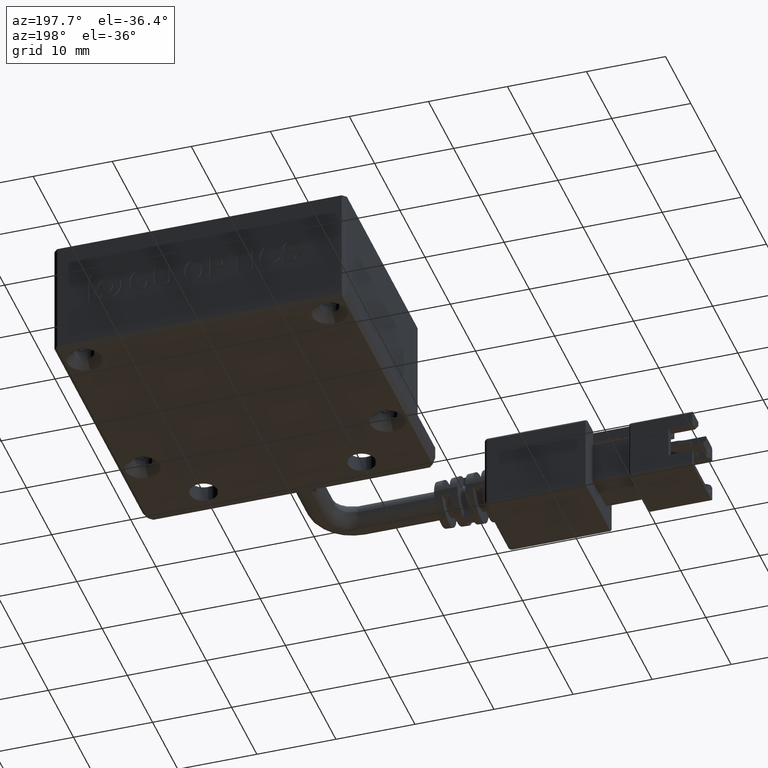
[diagram: clean part render]
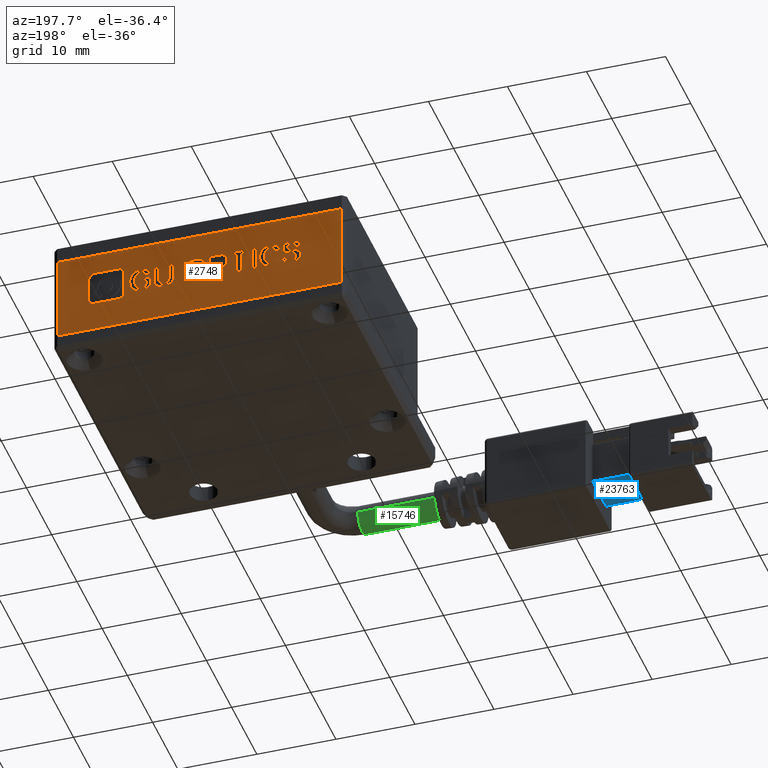
[diagram: same view with three faces highlighted in distinct colors, each labeled with its STEP entity id]
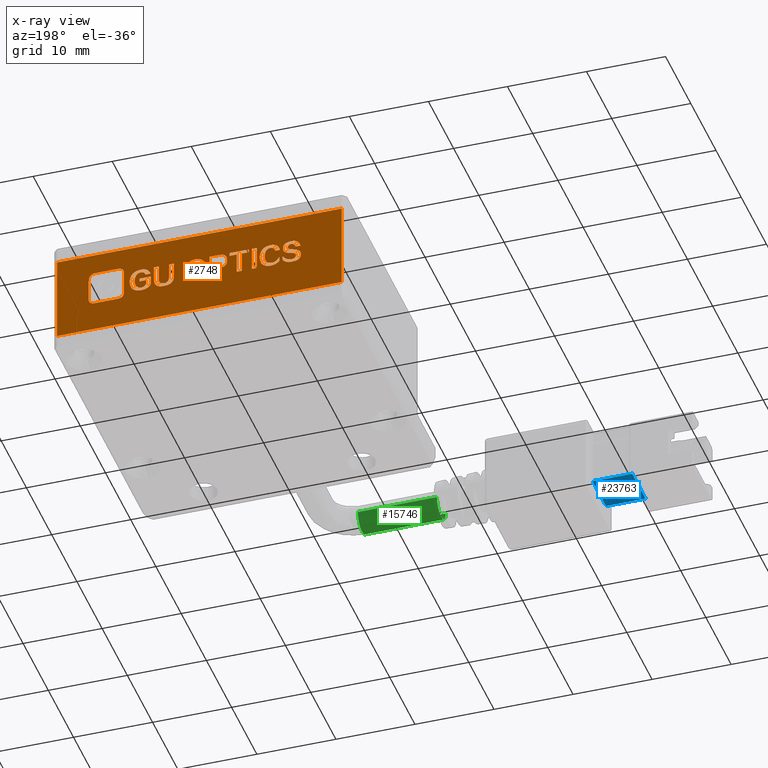
[diagram: x-ray of the same camera — body ghosted, the three highlighted faces saturated]
A machine part, auxiliary view with three faces highlighted in distinct colors.
The next image is the same camera in x-ray (body ghosted, the three faces saturated) — at least one of them is partly hidden behind the body in this view.
Their STEP definitions:

[orange] entity #2748 — the highlighted planar face has unit normal (0, -1, 0).
#9 = CARTESIAN_POINT ( 'NONE',  ( -17.52940053455517200, 13.94635357006495000, 10.99999999998363100 ) ) ;
#73 = B_SPLINE_CURVE_WITH_KNOTS ( 'NONE', 3,
 ( #6751, #18966, #10884, #25243 ),
 .UNSPECIFIED., .F., .F.,
 ( 4, 4 ),
 ( 3.000000000000000000, 4.000000000000000000 ),
 .UNSPECIFIED. ) ;
#115 = CARTESIAN_POINT ( 'NONE',  ( 6.646323930091674500, 13.94635357006495000, 6.684406040161602100 ) ) ;
#129 = CARTESIAN_POINT ( 'NONE',  ( -3.042670120746551600, 13.94635357006495000, 5.875103714580132100 ) ) ;
#162 = ORIENTED_EDGE ( 'NONE', *, *, #16180, .F. ) ;
#167 = CARTESIAN_POINT ( 'NONE',  ( -4.248997865473722200, 13.94635357006495000, 4.521615342487118400 ) ) ;
#243 = B_SPLINE_CURVE_WITH_KNOTS ( 'NONE', 3,
 ( #25464, #15341, #5082, #19466 ),
 .UNSPECIFIED., .F., .F.,
 ( 4, 4 ),
 ( 5.000000000000000000, 6.000000000000000000 ),
 .UNSPECIFIED. ) ;
#248 = CARTESIAN_POINT ( 'NONE',  ( -8.505623068285835600, 13.94635357006495000, 4.465801388998758400 ) ) ;
#331 = VERTEX_POINT ( 'NONE', #12622 ) ;
#449 = CARTESIAN_POINT ( 'NONE',  ( -5.797997324640598500, 13.94635357006495000, 7.103010691324335800 ) ) ;
#476 = CARTESIAN_POINT ( 'NONE',  ( -4.873822094786602200, 13.94635357006495000, 7.103010691324339400 ) ) ;
#486 = LINE ( 'NONE', #18793, #26468 ) ;
#569 = FACE_BOUND ( 'NONE', #2112, .T. ) ;
#575 = ORIENTED_EDGE ( 'NONE', *, *, #23056, .F. ) ;
#636 = DIRECTION ( 'NONE',  ( -4.076126200382680500E-015, -0.0000000000000000000, 1.000000000000000000 ) ) ;
#648 = CARTESIAN_POINT ( 'NONE',  ( -9.716250434429591500, 13.94635357006495000, 6.572778133184812100 ) ) ;
#651 = ORIENTED_EDGE ( 'NONE', *, *, #21339, .F. ) ;
#692 = EDGE_CURVE ( 'NONE', #3610, #15378, #2135, .T. ) ;
#741 = VECTOR ( 'NONE', #24495, 1000.000000000000000 ) ;
#806 = DIRECTION ( 'NONE',  ( -3.696054973590205000E-015, -0.0000000000000000000, 1.000000000000000000 ) ) ;
#815 = CARTESIAN_POINT ( 'NONE',  ( -0.7994846150679554300, 13.94635357006495000, 4.521615342487129900 ) ) ;
#826 = VERTEX_POINT ( 'NONE', #15385 ) ;
#872 = ORIENTED_EDGE ( 'NONE', *, *, #19577, .F. ) ;
#896 = LINE ( 'NONE', #23598, #16643 ) ;
#917 = ORIENTED_EDGE ( 'NONE', *, *, #12759, .F. ) ;
#945 = CARTESIAN_POINT ( 'NONE',  ( -4.248997865473722200, 13.94635357006495000, 4.521615342487118400 ) ) ;
#1085 = EDGE_CURVE ( 'NONE', #2809, #15986, #22568, .T. ) ;
#1090 = CARTESIAN_POINT ( 'NONE',  ( 3.704409381687255200, 13.94635357006495000, 5.819289761091809500 ) ) ;
#1112 = VECTOR ( 'NONE', #22951, 1000.000000000000000 ) ;
#1160 = VERTEX_POINT ( 'NONE', #20641 ) ;
#1225 = FACE_BOUND ( 'NONE', #4335, .T. ) ;
#1297 = VECTOR ( 'NONE', #806, 1000.000000000000000 ) ;
#1392 = CARTESIAN_POINT ( 'NONE',  ( -5.797997324640598500, 13.94635357006495000, 7.103010691324335800 ) ) ;
#1395 = CARTESIAN_POINT ( 'NONE',  ( 7.314631123168768800, 13.94635357006495000, 5.014570994190812300 ) ) ;
#1397 = DIRECTION ( 'NONE',  ( 0.0000000000000000000, -0.0000000000000000000, -1.000000000000000000 ) ) ;
#1406 = EDGE_CURVE ( 'NONE', #14880, #21416, #10402, .T. ) ;
#1501 = CARTESIAN_POINT ( 'NONE',  ( -3.025390510146391600, 13.94635357006495000, 6.544871156440640500 ) ) ;
#1514 = CARTESIAN_POINT ( 'NONE',  ( 14.49401041685039000, 13.94635357006495000, 4.658779040035254200 ) ) ;
#1559 = EDGE_CURVE ( 'NONE', #9889, #15960, #12474, .T. ) ;
#1669 = ORIENTED_EDGE ( 'NONE', *, *, #3742, .F. ) ;
#1676 = CARTESIAN_POINT ( 'NONE',  ( 9.267227121005577200, 13.94635357006495000, 7.005336272719747000 ) ) ;
#1699 = CARTESIAN_POINT ( 'NONE',  ( 10.29726003437759000, 13.94635357006495000, 3.843064958109932300 ) ) ;
#1719 = CARTESIAN_POINT ( 'NONE',  ( -7.793995161309074300, 13.94635357006495000, 5.279687273260521800 ) ) ;
#1747 = EDGE_CURVE ( 'NONE', #18423, #25924, #24424, .T. ) ;
#1772 = B_SPLINE_CURVE_WITH_KNOTS ( 'NONE', 3,
 ( #6661, #18965, #23075, #10791 ),
 .UNSPECIFIED., .F., .F.,
 ( 4, 4 ),
 ( 8.000000000000000000, 9.000000000000000000 ),
 .UNSPECIFIED. ) ;
#1805 = VERTEX_POINT ( 'NONE', #17135 ) ;
#1842 = EDGE_CURVE ( 'NONE', #15960, #24807, #243, .T. ) ;
#1841 = ORIENTED_EDGE ( 'NONE', *, *, #25142, .F. ) ;
#1851 = FACE_BOUND ( 'NONE', #6868, .T. ) ;
#1896 = EDGE_CURVE ( 'NONE', #1160, #6939, #24855, .T. ) ;
#1918 = VECTOR ( 'NONE', #636, 1000.000000000000000 ) ;
#1977 = CARTESIAN_POINT ( 'NONE',  ( 1.869038911162515200, 13.94635357006495000, 7.526198901167512100 ) ) ;
#1982 = DIRECTION ( 'NONE',  ( 6.543255216403682400E-015, -0.0000000000000000000, -1.000000000000000000 ) ) ;
#2054 = VECTOR ( 'NONE', #2950, 1000.000000000000000 ) ;
#2104 = B_SPLINE_CURVE_WITH_KNOTS ( 'NONE', 3,
 ( #14563, #16615, #12563, #248 ),
 .UNSPECIFIED., .F., .F.,
 ( 4, 4 ),
 ( 7.000000000000000000, 8.000000000000000000 ),
 .UNSPECIFIED. ) ;
#2112 = EDGE_LOOP ( 'NONE', ( #16815, #16032, #16428, #22335, #8418, #21054, #5122 ) ) ;
#2135 = B_SPLINE_CURVE_WITH_KNOTS ( 'NONE', 3,
 ( #12018, #20351, #14160, #24282 ),
 .UNSPECIFIED., .F., .F.,
 ( 4, 4 ),
 ( 3.000000000000000000, 4.000000000000000000 ),
 .UNSPECIFIED. ) ;
#2154 = CARTESIAN_POINT ( 'NONE',  ( 4.967118954429030200, 13.94635357006495000, 4.870452551789481000 ) ) ;
#2355 = ORIENTED_EDGE ( 'NONE', *, *, #6906, .F. ) ;
#2387 = VERTEX_POINT ( 'NONE', #21545 ) ;
#2415 = ORIENTED_EDGE ( 'NONE', *, *, #18648, .F. ) ;
#2433 = CARTESIAN_POINT ( 'NONE',  ( -10.34959278164448900, 13.94635357006495000, 5.098291924423302900 ) ) ;
#2481 = EDGE_CURVE ( 'NONE', #26510, #12207, #16031, .T. ) ;
#2497 = B_SPLINE_CURVE_WITH_KNOTS ( 'NONE', 3,
 ( #23907, #17833, #7574, #21921 ),
 .UNSPECIFIED., .F., .F.,
 ( 4, 4 ),
 ( 4.000000000000000000, 5.000000000000000000 ),
 .UNSPECIFIED. ) ;
#2510 = VERTEX_POINT ( 'NONE', #17996 ) ;
#2515 = CARTESIAN_POINT ( 'NONE',  ( 7.297108137771616900, 13.94635357006495000, 6.684406040161603900 ) ) ;
#2620 = CARTESIAN_POINT ( 'NONE',  ( -10.73152896336427500, 13.94635357006495000, 6.740219993649900800 ) ) ;
#2624 = ORIENTED_EDGE ( 'NONE', *, *, #23754, .F. ) ;
#2724 = VERTEX_POINT ( 'NONE', #19719 ) ;
#2737 = VECTOR ( 'NONE', #12585, 1000.000000000000000 ) ;
#2739 = CARTESIAN_POINT ( 'NONE',  ( -9.651107113715864800, 13.94635357006495000, 5.540219993649909500 ) ) ;
#2748 = ADVANCED_FACE ( 'NONE', ( #16966, #1225, #11522, #1851, #6025, #569, #21745, #16316, #10855, #5384 ), #15669, .F. ) ;
#2752 = CARTESIAN_POINT ( 'NONE',  ( -7.182150921179359500, 13.94635357006495000, 6.991382784347600000 ) ) ;
#2760 = VERTEX_POINT ( 'NONE', #26063 ) ;
#2768 = ORIENTED_EDGE ( 'NONE', *, *, #25494, .F. ) ;
#2773 = VECTOR ( 'NONE', #22910, 1000.000000000000000 ) ;
#2809 = VERTEX_POINT ( 'NONE', #9829 ) ;
#2854 = DIRECTION ( 'NONE',  ( 1.000000000000000000, 0.0000000000000000000, 0.0000000000000000000 ) ) ;
#2938 = CARTESIAN_POINT ( 'NONE',  ( 8.676962112893368900, 13.94635357006495000, 6.014638598301140800 ) ) ;
#2945 = CARTESIAN_POINT ( 'NONE',  ( 10.83557341941287100, 13.94635357006495000, 8.317175358458206000 ) ) ;
#2950 = DIRECTION ( 'NONE',  ( 0.0000000000000000000, -0.0000000000000000000, -1.000000000000000000 ) ) ;
#3105 = CARTESIAN_POINT ( 'NONE',  ( -7.776634425776476800, 13.94635357006495000, 5.986731621556889300 ) ) ;
#3110 = ORIENTED_EDGE ( 'NONE', *, *, #692, .F. ) ;
#3138 = CARTESIAN_POINT ( 'NONE',  ( -9.017521391703752400, 13.94635357006495000, 4.465801388998756700 ) ) ;
#3157 = EDGE_CURVE ( 'NONE', #12207, #2809, #10807, .T. ) ;
#3303 = CARTESIAN_POINT ( 'NONE',  ( -11.73382750311546700, 13.94635357006495000, 5.316964179696422700 ) ) ;
#3320 = EDGE_CURVE ( 'NONE', #8519, #4542, #486, .T. ) ;
#3321 = EDGE_CURVE ( 'NONE', #8494, #18589, #5314, .T. ) ;
#3356 = EDGE_CURVE ( 'NONE', #17898, #7690, #24673, .T. ) ;
#3358 = VECTOR ( 'NONE', #9818, 1000.000000000000000 ) ;
#3449 = CARTESIAN_POINT ( 'NONE',  ( 7.856870171303098600, 13.94635357006495000, 4.870452551789491700 ) ) ;
#3479 = DIRECTION ( 'NONE',  ( 3.758567531283077000E-015, -0.0000000000000000000, -1.000000000000000000 ) ) ;
#3483 = EDGE_CURVE ( 'NONE', #7428, #14880, #4382, .T. ) ;
#3570 = CARTESIAN_POINT ( 'NONE',  ( 2.376718738095969600, 13.94635357006495000, 6.000685109929015900 ) ) ;
#3610 = VERTEX_POINT ( 'NONE', #7467 ) ;
#3681 = B_SPLINE_CURVE_WITH_KNOTS ( 'NONE', 3,
 ( #18551, #10380, #129, #14533 ),
 .UNSPECIFIED., .F., .F.,
 ( 4, 4 ),
 ( 6.000000000000000000, 7.000000000000000000 ),
 .UNSPECIFIED. ) ;
#3687 = AXIS2_PLACEMENT_3D ( 'NONE', #25981, #13697, #1397 ) ;
#3690 = CARTESIAN_POINT ( 'NONE',  ( -1.411247730265349900, 13.94635357006495000, 4.521615342487129000 ) ) ;
#3742 = EDGE_CURVE ( 'NONE', #15810, #23183, #6453, .T. ) ;
#3794 = LINE ( 'NONE', #6277, #14743 ) ;
#3808 = VECTOR ( 'NONE', #19141, 1000.000000000000000 ) ;
#3825 = CARTESIAN_POINT ( 'NONE',  ( -6.162491645895449300, 13.94635357006495000, 7.521615342487115700 ) ) ;
#3835 = EDGE_CURVE ( 'NONE', #18661, #5398, #21611, .T. ) ;
#3941 = CARTESIAN_POINT ( 'NONE',  ( -11.80748894173112400, 13.94635357006495000, 7.544735948219921400 ) ) ;
#4001 = LINE ( 'NONE', #17988, #14290 ) ;
#4049 = CARTESIAN_POINT ( 'NONE',  ( 2.333398024196513100, 13.94635357006495000, 7.005336272719723000 ) ) ;
#4116 = VERTEX_POINT ( 'NONE', #11973 ) ;
#4162 = CARTESIAN_POINT ( 'NONE',  ( -12.29358953664717200, 13.94635357006495000, 6.628592086673147100 ) ) ;
#4335 = EDGE_LOOP ( 'NONE', ( #917, #4609, #25053, #25432, #15652, #1669, #15009, #25835, #22211, #21346 ) ) ;
#4364 = EDGE_CURVE ( 'NONE', #20246, #18661, #5526, .T. ) ;
#4382 = B_SPLINE_CURVE_WITH_KNOTS ( 'NONE', 3,
 ( #13125, #15294, #11257, #25603 ),
 .UNSPECIFIED., .F., .F.,
 ( 4, 4 ),
 ( 3.000000000000000000, 4.000000000000000000 ),
 .UNSPECIFIED. ) ;
#4419 = DIRECTION ( 'NONE',  ( 1.000000000000000000, -0.0000000000000000000, 2.445209610887515300E-015 ) ) ;
#4439 = CARTESIAN_POINT ( 'NONE',  ( -9.104406194299981400, 13.94635357006495000, 6.572778133184813900 ) ) ;
#4453 = EDGE_CURVE ( 'NONE', #16276, #19741, #12652, .T. ) ;
#4457 = VECTOR ( 'NONE', #19802, 1000.000000000000000 ) ;
#4542 = VERTEX_POINT ( 'NONE', #7437 ) ;
#4548 = CARTESIAN_POINT ( 'NONE',  ( 10.83557341941287100, 13.94635357006495000, 8.317175358458206000 ) ) ;
#4586 = EDGE_LOOP ( 'NONE', ( #8872, #11741, #3110, #2355 ) ) ;
#4609 = ORIENTED_EDGE ( 'NONE', *, *, #7939, .F. ) ;
#4772 = ORIENTED_EDGE ( 'NONE', *, *, #5143, .F. ) ;
#4950 = DIRECTION ( 'NONE',  ( -0.0000000000000000000, -0.0000000000000000000, -1.000000000000000000 ) ) ;
#4990 = CARTESIAN_POINT ( 'NONE',  ( 10.83557341941288300, 13.94635357006495000, 3.843064958109934100 ) ) ;
#5018 = VECTOR ( 'NONE', #1982, 1000.000000000000000 ) ;
#5048 = ORIENTED_EDGE ( 'NONE', *, *, #17959, .F. ) ;
#5079 = CARTESIAN_POINT ( 'NONE',  ( -7.776634425776476800, 13.94635357006495000, 5.986731621556889300 ) ) ;
#5082 = CARTESIAN_POINT ( 'NONE',  ( -10.11976584816688000, 13.94635357006495000, 7.279619669150179100 ) ) ;
#5122 = ORIENTED_EDGE ( 'NONE', *, *, #13261, .F. ) ;
#5132 = VERTEX_POINT ( 'NONE', #21832 ) ;
#5143 = EDGE_CURVE ( 'NONE', #826, #7428, #12130, .T. ) ;
#5155 = EDGE_CURVE ( 'NONE', #25924, #16276, #2497, .T. ) ;
#5209 = CARTESIAN_POINT ( 'NONE',  ( -8.505623068285835600, 13.94635357006495000, 4.465801388998758400 ) ) ;
#5269 = CARTESIAN_POINT ( 'NONE',  ( -8.032502462552944400, 13.94635357006495000, 7.112177808685065500 ) ) ;
#5280 = EDGE_CURVE ( 'NONE', #12579, #26346, #7271, .T. ) ;
#5314 = LINE ( 'NONE', #20844, #15607 ) ;
#5377 = EDGE_LOOP ( 'NONE', ( #11560, #21705, #17141, #24021, #12133, #5547, #4772, #20891, #162, #2624, #9819, #9636, #10361, #13128 ) ) ;
#5384 = FACE_OUTER_BOUND ( 'NONE', #23695, .T. ) ;
#5397 = EDGE_CURVE ( 'NONE', #7690, #8519, #24589, .T. ) ;
#5398 = VERTEX_POINT ( 'NONE', #18701 ) ;
#5526 = LINE ( 'NONE', #13095, #10340 ) ;
#5547 = ORIENTED_EDGE ( 'NONE', *, *, #3483, .F. ) ;
#5626 = CARTESIAN_POINT ( 'NONE',  ( 13.67826373838532200, 13.94635357006495000, 3.843064958109941600 ) ) ;
#5656 = LINE ( 'NONE', #6638, #21367 ) ;
#5673 = ORIENTED_EDGE ( 'NONE', *, *, #14503, .F. ) ;
#5685 = VERTEX_POINT ( 'NONE', #11344 ) ;
#5710 = B_SPLINE_CURVE_WITH_KNOTS ( 'NONE', 3,
 ( #12757, #20826, #14850, #2515 ),
 .UNSPECIFIED., .F., .F.,
 ( 4, 4 ),
 ( 1.000000000000000000, 2.000000000000000000 ),
 .UNSPECIFIED. ) ;
#5802 = DIRECTION ( 'NONE',  ( -1.000000000000000000, -0.0000000000000000000, -0.0000000000000000000 ) ) ;
#5835 = CARTESIAN_POINT ( 'NONE',  ( -8.648808573964661400, 13.94635357006495000, 4.870452551789433000 ) ) ;
#5845 = ORIENTED_EDGE ( 'NONE', *, *, #5155, .F. ) ;
#5870 = VECTOR ( 'NONE', #24049, 1000.000000000000000 ) ;
#5876 = DIRECTION ( 'NONE',  ( 1.000000000000000000, -0.0000000000000000000, 2.835237078654225800E-015 ) ) ;
#5886 = B_SPLINE_CURVE_WITH_KNOTS ( 'NONE', 3,
 ( #16062, #1699, #9955, #24301 ),
 .UNSPECIFIED., .F., .F.,
 ( 4, 4 ),
 ( 5.000000000000000000, 6.000000000000000000 ),
 .UNSPECIFIED. ) ;
#5887 = CARTESIAN_POINT ( 'NONE',  ( 4.980098943612508000, 13.94635357006495000, 4.465801388998809100 ) ) ;
#5904 = CARTESIAN_POINT ( 'NONE',  ( -12.18942512345078700, 13.94635357006495000, 7.233175645353520100 ) ) ;
#5913 = CARTESIAN_POINT ( 'NONE',  ( -3.324822635619626400, 13.94635357006495000, 7.521615342487124600 ) ) ;
#5992 = VERTEX_POINT ( 'NONE', #21882 ) ;
#6016 = CARTESIAN_POINT ( 'NONE',  ( -10.02858142415408200, 13.94635357006495000, 5.023940923882459100 ) ) ;
#6025 = FACE_BOUND ( 'NONE', #19359, .T. ) ;
#6240 = LINE ( 'NONE', #14616, #16546 ) ;
#6275 = VERTEX_POINT ( 'NONE', #8690 ) ;
#6277 = CARTESIAN_POINT ( 'NONE',  ( -2.010030856279267500, 13.94635357006495000, 5.568126970394103200 ) ) ;
#6296 = ORIENTED_EDGE ( 'NONE', *, *, #24784, .F. ) ;
#6347 = LINE ( 'NONE', #20186, #22073 ) ;
#6348 = DIRECTION ( 'NONE',  ( -1.000000000000000000, -0.0000000000000000000, -5.670474157308451600E-015 ) ) ;
#6379 = CARTESIAN_POINT ( 'NONE',  ( -10.09372474486770000, 13.94635357006495000, 6.740219993649902500 ) ) ;
#6421 = DIRECTION ( 'NONE',  ( 1.000000000000000000, -0.0000000000000000000, 4.299026547488990100E-015 ) ) ;
#6453 = B_SPLINE_CURVE_WITH_KNOTS ( 'NONE', 3,
 ( #5835, #18140, #1719, #20215 ),
 .UNSPECIFIED., .F., .F.,
 ( 4, 4 ),
 ( 3.000000000000000000, 4.000000000000000000 ),
 .UNSPECIFIED. ) ;
#6616 = EDGE_CURVE ( 'NONE', #5685, #13762, #9722, .T. ) ;
#6638 = CARTESIAN_POINT ( 'NONE',  ( 7.219065952806524900, 13.94635357006495000, 5.330917668068592800 ) ) ;
#6661 = CARTESIAN_POINT ( 'NONE',  ( -11.16108548040062900, 13.94635357006495000, 7.130917668068485100 ) ) ;
#6665 = ORIENTED_EDGE ( 'NONE', *, *, #17877, .F. ) ;
#6674 = CARTESIAN_POINT ( 'NONE',  ( 7.869850160486472600, 13.94635357006495000, 4.465801388998816200 ) ) ;
#6685 = CARTESIAN_POINT ( 'NONE',  ( 0.9838847737909679500, 13.94635357006495000, 4.465801388998791300 ) ) ;
#6706 = LINE ( 'NONE', #3690, #11550 ) ;
#6751 = CARTESIAN_POINT ( 'NONE',  ( -11.20018769781528100, 13.94635357006495000, 5.777429295975501600 ) ) ;
#6767 = VERTEX_POINT ( 'NONE', #115 ) ;
#6768 = CARTESIAN_POINT ( 'NONE',  ( 18.47059946544482800, 13.94635357006495400, -1.637101912366212300E-011 ) ) ;
#6843 = ORIENTED_EDGE ( 'NONE', *, *, #20153, .F. ) ;
#6868 = EDGE_LOOP ( 'NONE', ( #9368, #6665, #575, #25476, #8321, #14188, #25586, #6843 ) ) ;
#6899 = CARTESIAN_POINT ( 'NONE',  ( -9.021821013120767700, 13.94635357006495000, 4.851712692405975200 ) ) ;
#6906 = EDGE_CURVE ( 'NONE', #23394, #3610, #11789, .T. ) ;
#6919 = CARTESIAN_POINT ( 'NONE',  ( 6.837292020951617000, 13.94635357006495000, 7.270452551789501800 ) ) ;
#6939 = VERTEX_POINT ( 'NONE', #17011 ) ;
#6944 = VERTEX_POINT ( 'NONE', #23192 ) ;
#6949 = CARTESIAN_POINT ( 'NONE',  ( 8.052137883579943500, 13.94635357006495000, 5.833243249463914800 ) ) ;
#7002 = CARTESIAN_POINT ( 'NONE',  ( -10.72276747066547900, 13.94635357006495000, 7.000549901708282600 ) ) ;
#7141 = VECTOR ( 'NONE', #10522, 1000.000000000000000 ) ;
#7191 = CARTESIAN_POINT ( 'NONE',  ( -9.399295323558876100, 13.94635357006495000, 4.633243249463875600 ) ) ;
#7218 = CARTESIAN_POINT ( 'NONE',  ( -3.324822635619626400, 13.94635357006495000, 7.521615342487124600 ) ) ;
#7271 = LINE ( 'NONE', #20321, #12093 ) ;
#7298 = CARTESIAN_POINT ( 'NONE',  ( 8.789806893856003000, 13.94635357006495000, 4.503078295434707300 ) ) ;
#7366 = EDGE_CURVE ( 'NONE', #14437, #12579, #6706, .T. ) ;
#7370 = VERTEX_POINT ( 'NONE', #7817 ) ;
#7428 = VERTEX_POINT ( 'NONE', #12141 ) ;
#7436 = CARTESIAN_POINT ( 'NONE',  ( -11.52557980165524800, 13.94635357006495000, 4.856499063417334000 ) ) ;
#7437 = CARTESIAN_POINT ( 'NONE',  ( 8.052137883579943500, 13.94635357006495000, 6.251847900626722200 ) ) ;
#7467 = CARTESIAN_POINT ( 'NONE',  ( -0.4089491905140442100, 13.94635357006495000, 6.000685109929005300 ) ) ;
#7489 = EDGE_CURVE ( 'NONE', #26346, #5992, #3794, .T. ) ;
#7574 = CARTESIAN_POINT ( 'NONE',  ( 4.524501323276976600, 13.94635357006495000, 4.851712692406022300 ) ) ;
#7602 = ORIENTED_EDGE ( 'NONE', *, *, #1842, .F. ) ;
#7690 = VERTEX_POINT ( 'NONE', #15107 ) ;
#7746 = EDGE_CURVE ( 'NONE', #6275, #8494, #20036, .T. ) ;
#7812 = B_SPLINE_CURVE_WITH_KNOTS ( 'NONE', 3,
 ( #2739, #8875, #6899, #21232 ),
 .UNSPECIFIED., .F., .F.,
 ( 4, 4 ),
 ( 4.000000000000000000, 5.000000000000000000 ),
 .UNSPECIFIED. ) ;
#7817 = CARTESIAN_POINT ( 'NONE',  ( -11.13504437710144400, 13.94635357006495000, 4.856499063417335700 ) ) ;
#7846 = CARTESIAN_POINT ( 'NONE',  ( -8.518603057469105600, 13.94635357006495000, 7.130917668068493100 ) ) ;
#7898 = CARTESIAN_POINT ( 'NONE',  ( 14.49401041685038300, 13.94635357006495000, 7.338342923008569900 ) ) ;
#7939 = EDGE_CURVE ( 'NONE', #2510, #12817, #26191, .T. ) ;
#8109 = ORIENTED_EDGE ( 'NONE', *, *, #24297, .F. ) ;
#8121 = ORIENTED_EDGE ( 'NONE', *, *, #17922, .F. ) ;
#8138 = EDGE_CURVE ( 'NONE', #5992, #331, #3681, .T. ) ;
#8234 = LINE ( 'NONE', #12607, #2773 ) ;
#8309 = B_SPLINE_CURVE_WITH_KNOTS ( 'NONE', 3,
 ( #21256, #6919, #23320, #11057 ),
 .UNSPECIFIED., .F., .F.,
 ( 4, 4 ),
 ( 13.00000000000000000, 14.00000000000000000 ),
 .UNSPECIFIED. ) ;
#8321 = ORIENTED_EDGE ( 'NONE', *, *, #3321, .F. ) ;
#8341 = ORIENTED_EDGE ( 'NONE', *, *, #3157, .F. ) ;
#8401 = CARTESIAN_POINT ( 'NONE',  ( 6.229747402238907700, 13.94635357006495000, 7.521615342487159200 ) ) ;
#8418 = ORIENTED_EDGE ( 'NONE', *, *, #7366, .F. ) ;
#8494 = VERTEX_POINT ( 'NONE', #4548 ) ;
#8519 = VERTEX_POINT ( 'NONE', #18927 ) ;
#8529 = ORIENTED_EDGE ( 'NONE', *, *, #1085, .F. ) ;
#8563 = EDGE_CURVE ( 'NONE', #8631, #15810, #7812, .T. ) ;
#8591 = VERTEX_POINT ( 'NONE', #19193 ) ;
#8631 = VERTEX_POINT ( 'NONE', #15339 ) ;
#8676 = CARTESIAN_POINT ( 'NONE',  ( -10.09372474486770000, 13.94635357006495000, 6.740219993649902500 ) ) ;
#8690 = CARTESIAN_POINT ( 'NONE',  ( 10.01990012952769500, 13.94635357006495000, 7.501469430819986100 ) ) ;
#8703 = EDGE_CURVE ( 'NONE', #23183, #5685, #11968, .T. ) ;
#8754 = CARTESIAN_POINT ( 'NONE',  ( -0.3653851018174947300, 13.94635357006495000, 5.033108041243257200 ) ) ;
#8831 = EDGE_CURVE ( 'NONE', #331, #8591, #9887, .T. ) ;
#8872 = ORIENTED_EDGE ( 'NONE', *, *, #19496, .F. ) ;
#8875 = CARTESIAN_POINT ( 'NONE',  ( -9.355974609659645200, 13.94635357006495000, 5.074968506359481600 ) ) ;
#8996 = CARTESIAN_POINT ( 'NONE',  ( 10.83557341941288300, 13.94635357006495000, 3.843064958109934100 ) ) ;
#8999 = CARTESIAN_POINT ( 'NONE',  ( -5.797997324640600200, 13.94635357006495000, 7.521615342487115700 ) ) ;
#9064 = EDGE_CURVE ( 'NONE', #19741, #23742, #8234, .T. ) ;
#9067 = CARTESIAN_POINT ( 'NONE',  ( -10.86595297634430100, 13.94635357006495000, 7.130917668068485100 ) ) ;
#9266 = CARTESIAN_POINT ( 'NONE',  ( 3.661088667787579400, 13.94635357006495000, 4.870452551789475700 ) ) ;
#9330 = CARTESIAN_POINT ( 'NONE',  ( -10.72276747066547400, 13.94635357006495000, 4.437894412254556700 ) ) ;
#9368 = ORIENTED_EDGE ( 'NONE', *, *, #14418, .F. ) ;
#9513 = EDGE_CURVE ( 'NONE', #20073, #1160, #11149, .T. ) ;
#9557 = CARTESIAN_POINT ( 'NONE',  ( -11.22614767618202000, 13.94635357006495000, 4.465801388998748700 ) ) ;
#9585 = EDGE_CURVE ( 'NONE', #24807, #24384, #22240, .T. ) ;
#9612 = VERTEX_POINT ( 'NONE', #22802 ) ;
#9636 = ORIENTED_EDGE ( 'NONE', *, *, #5397, .F. ) ;
#9717 = VERTEX_POINT ( 'NONE', #20147 ) ;
#9722 = B_SPLINE_CURVE_WITH_KNOTS ( 'NONE', 3,
 ( #7846, #20167, #12009, #26310 ),
 .UNSPECIFIED., .F., .F.,
 ( 4, 4 ),
 ( 1.000000000000000000, 2.000000000000000000 ),
 .UNSPECIFIED. ) ;
#9765 = CARTESIAN_POINT ( 'NONE',  ( -2.695536535024420900, 13.94635357006495000, 7.521615342487128200 ) ) ;
#9779 = CARTESIAN_POINT ( 'NONE',  ( -8.479581964986669700, 13.94635357006495000, 7.563475807603390800 ) ) ;
#9781 = CARTESIAN_POINT ( 'NONE',  ( 0.9838847737909679500, 13.94635357006495000, 4.465801388998791300 ) ) ;
#9813 = CARTESIAN_POINT ( 'NONE',  ( -11.99845703259094900, 13.94635357006495000, 4.465801388998746900 ) ) ;
#9818 = DIRECTION ( 'NONE',  ( -1.000000000000000000, -0.0000000000000000000, -4.164642720266181500E-015 ) ) ;
#9819 = ORIENTED_EDGE ( 'NONE', *, *, #3320, .F. ) ;
#9829 = CARTESIAN_POINT ( 'NONE',  ( -5.797997324640600200, 13.94635357006495000, 7.521615342487114800 ) ) ;
#9874 = VERTEX_POINT ( 'NONE', #9 ) ;
#9887 = B_SPLINE_CURVE_WITH_KNOTS ( 'NONE', 3,
 ( #1501, #19999, #9765, #24099 ),
 .UNSPECIFIED., .F., .F.,
 ( 4, 4 ),
 ( 5.000000000000000000, 6.000000000000000000 ),
 .UNSPECIFIED. ) ;
#9889 = VERTEX_POINT ( 'NONE', #4162 ) ;
#9902 = CARTESIAN_POINT ( 'NONE',  ( 14.21673205486627400, 13.94635357006495000, 8.317175358458216600 ) ) ;
#9943 = CARTESIAN_POINT ( 'NONE',  ( 6.229747402238914800, 13.94635357006495000, 5.791382784347652200 ) ) ;
#9955 = CARTESIAN_POINT ( 'NONE',  ( 10.01990012952769500, 13.94635357006495000, 4.120384098532643000 ) ) ;
#9963 = ORIENTED_EDGE ( 'NONE', *, *, #16336, .F. ) ;
#10021 = B_SPLINE_CURVE_WITH_KNOTS ( 'NONE', 3,
 ( #3570, #26097, #22043, #9781 ),
 .UNSPECIFIED., .F., .F.,
 ( 4, 4 ),
 ( 1.000000000000000000, 2.000000000000000000 ),
 .UNSPECIFIED. ) ;
#10040 = EDGE_CURVE ( 'NONE', #13762, #2510, #14642, .T. ) ;
#10083 = CARTESIAN_POINT ( 'NONE',  ( 8.052137883579943500, 13.94635357006495000, 5.833243249463914800 ) ) ;
#10106 = CARTESIAN_POINT ( 'NONE',  ( -12.37171284654426100, 13.94635357006495000, 5.358824644812690600 ) ) ;
#10143 = CARTESIAN_POINT ( 'NONE',  ( -9.651107113715863100, 13.94635357006495000, 4.968126970394072500 ) ) ;
#10197 = DIRECTION ( 'NONE',  ( -1.000000000000000000, -0.0000000000000000000, -2.665589385091454300E-015 ) ) ;
#10214 = CARTESIAN_POINT ( 'NONE',  ( 7.297108137771616900, 13.94635357006495000, 6.684406040161603900 ) ) ;
#10338 = LINE ( 'NONE', #24547, #20614 ) ;
#10340 = VECTOR ( 'NONE', #2854, 1000.000000000000000 ) ;
#10361 = ORIENTED_EDGE ( 'NONE', *, *, #3356, .F. ) ;
#10380 = CARTESIAN_POINT ( 'NONE',  ( -2.704216902790991900, 13.94635357006495000, 5.549387111010670300 ) ) ;
#10402 = B_SPLINE_CURVE_WITH_KNOTS ( 'NONE', 3,
 ( #2938, #11126, #25472, #17316 ),
 .UNSPECIFIED., .F., .F.,
 ( 4, 4 ),
 ( 2.000000000000000000, 3.000000000000000000 ),
 .UNSPECIFIED. ) ;
#10475 = CARTESIAN_POINT ( 'NONE',  ( -6.774335886025160600, 13.94635357006495000, 4.521615342487109500 ) ) ;
#10483 = CARTESIAN_POINT ( 'NONE',  ( 6.229747402238907700, 13.94635357006495000, 7.521615342487159200 ) ) ;
#10509 = CARTESIAN_POINT ( 'NONE',  ( -10.40159386331008000, 13.94635357006495000, 5.916964179696431200 ) ) ;
#10519 = VERTEX_POINT ( 'NONE', #14739 ) ;
#10522 = DIRECTION ( 'NONE',  ( -1.000000000000000000, -0.0000000000000000000, -1.877050390379598600E-015 ) ) ;
#10525 = CARTESIAN_POINT ( 'NONE',  ( 6.633262815976089600, 13.94635357006495000, 6.251847900626718700 ) ) ;
#10534 = CARTESIAN_POINT ( 'NONE',  ( 10.01990012952769500, 13.94635357006495000, 4.658779040035239100 ) ) ;
#10678 = VERTEX_POINT ( 'NONE', #4990 ) ;
#10721 = CARTESIAN_POINT ( 'NONE',  ( -10.87901409046011000, 13.94635357006495000, 6.363475807603375500 ) ) ;
#10791 = CARTESIAN_POINT ( 'NONE',  ( -11.69480641063314700, 13.94635357006495000, 6.628592086673150700 ) ) ;
#10806 = CARTESIAN_POINT ( 'NONE',  ( -11.22614767618202200, 13.94635357006495000, 6.307661854115015600 ) ) ;
#10807 = LINE ( 'NONE', #8999, #26496 ) ;
#10823 = EDGE_CURVE ( 'NONE', #9612, #14437, #22189, .T. ) ;
#10855 = FACE_BOUND ( 'NONE', #5377, .T. ) ;
#10884 = CARTESIAN_POINT ( 'NONE',  ( -11.73382750311547100, 13.94635357006495000, 5.558757040702361400 ) ) ;
#10927 = CARTESIAN_POINT ( 'NONE',  ( 0.9838847737909575100, 13.94635357006495000, 7.563475807603423600 ) ) ;
#11008 = VECTOR ( 'NONE', #22909, 1000.000000000000000 ) ;
#11057 = CARTESIAN_POINT ( 'NONE',  ( 7.908952377901227800, 13.94635357006495000, 7.563475807603447600 ) ) ;
#11066 = DIRECTION ( 'NONE',  ( -1.000000000000000000, -0.0000000000000000000, -3.051200238729955900E-015 ) ) ;
#11071 = DIRECTION ( 'NONE',  ( -4.144061637055817500E-015, -0.0000000000000000000, 1.000000000000000000 ) ) ;
#11126 = CARTESIAN_POINT ( 'NONE',  ( 8.650921009594297200, 13.94635357006495000, 6.721480134266525600 ) ) ;
#11133 = CARTESIAN_POINT ( 'NONE',  ( 10.01990012952769500, 13.94635357006495000, 7.501469430819986100 ) ) ;
#11141 = CARTESIAN_POINT ( 'NONE',  ( -11.20018769781528100, 13.94635357006495000, 5.777429295975501600 ) ) ;
#11149 = LINE ( 'NONE', #6016, #5018 ) ;
#11257 = CARTESIAN_POINT ( 'NONE',  ( 8.650921009594302500, 13.94635357006495000, 5.298224320313009300 ) ) ;
#11312 = VECTOR ( 'NONE', #3479, 1000.000000000000000 ) ;
#11330 = CARTESIAN_POINT ( 'NONE',  ( 3.704409381687255200, 13.94635357006495000, 5.819289761091809500 ) ) ;
#11344 = CARTESIAN_POINT ( 'NONE',  ( -8.518603057469105600, 13.94635357006495000, 7.130917668068493100 ) ) ;
#11361 = VECTOR ( 'NONE', #23863, 1000.000000000000000 ) ;
#11501 = CARTESIAN_POINT ( 'NONE',  ( 5.604923172925489400, 13.94635357006495000, 5.637894412254634200 ) ) ;
#11522 = FACE_BOUND ( 'NONE', #13232, .T. ) ;
#11550 = VECTOR ( 'NONE', #15987, 1000.000000000000000 ) ;
#11560 = ORIENTED_EDGE ( 'NONE', *, *, #22243, .F. ) ;
#11579 = ORIENTED_EDGE ( 'NONE', *, *, #14382, .F. ) ;
#11590 = CARTESIAN_POINT ( 'NONE',  ( -7.138830207279792000, 13.94635357006495000, 6.014638598301086600 ) ) ;
#11597 = LINE ( 'NONE', #25408, #1297 ) ;
#11653 = VECTOR ( 'NONE', #5876, 1000.000000000000000 ) ;
#11741 = ORIENTED_EDGE ( 'NONE', *, *, #22517, .F. ) ;
#11764 = VERTEX_POINT ( 'NONE', #15138 ) ;
#11777 = CARTESIAN_POINT ( 'NONE',  ( -6.774335886025171200, 13.94635357006495000, 7.521615342487113900 ) ) ;
#11789 = B_SPLINE_CURVE_WITH_KNOTS ( 'NONE', 3,
 ( #6685, #16919, #8754, #23100 ),
 .UNSPECIFIED., .F., .F.,
 ( 4, 4 ),
 ( 0.0000000000000000000, 1.000000000000000000 ),
 .UNSPECIFIED. ) ;
#11795 = VERTEX_POINT ( 'NONE', #19255 ) ;
#11893 = CARTESIAN_POINT ( 'NONE',  ( -12.37171284654426100, 13.94635357006495000, 5.358824644812690600 ) ) ;
#11968 = B_SPLINE_CURVE_WITH_KNOTS ( 'NONE', 3,
 ( #3105, #15517, #5269, #19647 ),
 .UNSPECIFIED., .F., .F.,
 ( 4, 4 ),
 ( 2.000000000000000000, 3.000000000000000000 ),
 .UNSPECIFIED. ) ;
#11973 = CARTESIAN_POINT ( 'NONE',  ( 14.49401041685039000, 13.94635357006495000, 4.658779040035254200 ) ) ;
#12003 = LINE ( 'NONE', #23959, #11361 ) ;
#12009 = CARTESIAN_POINT ( 'NONE',  ( -9.017521391703759500, 13.94635357006495000, 6.944735948219942200 ) ) ;
#12018 = CARTESIAN_POINT ( 'NONE',  ( -0.4089491905140442100, 13.94635357006495000, 6.000685109929005300 ) ) ;
#12020 = CARTESIAN_POINT ( 'NONE',  ( 6.255788505537982900, 13.94635357006495000, 4.879619669150248900 ) ) ;
#12042 = LINE ( 'NONE', #12732, #1112 ) ;
#12093 = VECTOR ( 'NONE', #18163, 1000.000000000000000 ) ;
#12129 = CARTESIAN_POINT ( 'NONE',  ( -1.411247730265349900, 13.94635357006495000, 4.521615342487129000 ) ) ;
#12130 = B_SPLINE_CURVE_WITH_KNOTS ( 'NONE', 3,
 ( #13695, #1395, #15765, #3449 ),
 .UNSPECIFIED., .F., .F.,
 ( 4, 4 ),
 ( 4.000000000000000000, 5.000000000000000000 ),
 .UNSPECIFIED. ) ;
#12133 = ORIENTED_EDGE ( 'NONE', *, *, #1406, .F. ) ;
#12137 = CARTESIAN_POINT ( 'NONE',  ( 18.47059946544482000, 13.94635357006495000, 10.99999999998363100 ) ) ;
#12141 = CARTESIAN_POINT ( 'NONE',  ( 7.856870171303098600, 13.94635357006495000, 4.870452551789491700 ) ) ;
#12152 = LINE ( 'NONE', #8401, #17618 ) ;
#12199 = ORIENTED_EDGE ( 'NONE', *, *, #23585, .F. ) ;
#12207 = VERTEX_POINT ( 'NONE', #449 ) ;
#12255 = EDGE_CURVE ( 'NONE', #15986, #10519, #14757, .T. ) ;
#12408 = EDGE_CURVE ( 'NONE', #19034, #8631, #896, .T. ) ;
#12446 = B_SPLINE_CURVE_WITH_KNOTS ( 'NONE', 3,
 ( #1514, #13814, #17945, #5626 ),
 .UNSPECIFIED., .F., .F.,
 ( 4, 4 ),
 ( 7.000000000000000000, 8.000000000000000000 ),
 .UNSPECIFIED. ) ;
#12460 = ORIENTED_EDGE ( 'NONE', *, *, #16178, .F. ) ;
#12474 = B_SPLINE_CURVE_WITH_KNOTS ( 'NONE', 3,
 ( #16238, #5904, #3941, #18310 ),
 .UNSPECIFIED., .F., .F.,
 ( 4, 4 ),
 ( 6.000000000000000000, 7.000000000000000000 ),
 .UNSPECIFIED. ) ;
#12494 = DIRECTION ( 'NONE',  ( 3.696054973590201900E-015, -0.0000000000000000000, -1.000000000000000000 ) ) ;
#12524 = VERTEX_POINT ( 'NONE', #20290 ) ;
#12537 = ORIENTED_EDGE ( 'NONE', *, *, #16855, .F. ) ;
#12560 = EDGE_CURVE ( 'NONE', #15853, #6275, #13072, .T. ) ;
#12563 = CARTESIAN_POINT ( 'NONE',  ( -7.637748541514663500, 13.94635357006495000, 4.512448225126410900 ) ) ;
#12579 = VERTEX_POINT ( 'NONE', #12129 ) ;
#12585 = DIRECTION ( 'NONE',  ( -3.108046227791703400E-015, -0.0000000000000000000, 1.000000000000000000 ) ) ;
#12594 = CARTESIAN_POINT ( 'NONE',  ( 13.67826373838530800, 13.94635357006495000, 8.317175358458216600 ) ) ;
#12607 = CARTESIAN_POINT ( 'NONE',  ( 5.604923172925482300, 13.94635357006495000, 7.521615342487155700 ) ) ;
#12622 = CARTESIAN_POINT ( 'NONE',  ( -3.025390510146391600, 13.94635357006495000, 6.544871156440640500 ) ) ;
#12652 = B_SPLINE_CURVE_WITH_KNOTS ( 'NONE', 3,
 ( #23762, #21676, #15538, #11501 ),
 .UNSPECIFIED., .F., .F.,
 ( 4, 4 ),
 ( 3.000000000000000000, 4.000000000000000000 ),
 .UNSPECIFIED. ) ;
#12690 = DIRECTION ( 'NONE',  ( 1.000000000000000000, -0.0000000000000000000, 3.661440286475947500E-015 ) ) ;
#12732 = CARTESIAN_POINT ( 'NONE',  ( 14.49401041685039000, 13.94635357006495000, 4.658779040035254200 ) ) ;
#12752 = EDGE_CURVE ( 'NONE', #25938, #826, #5656, .T. ) ;
#12757 = CARTESIAN_POINT ( 'NONE',  ( 7.908952377901227800, 13.94635357006495000, 7.144871156440668600 ) ) ;
#12759 = EDGE_CURVE ( 'NONE', #12817, #17840, #14375, .T. ) ;
#12817 = VERTEX_POINT ( 'NONE', #15263 ) ;
#12923 = DIRECTION ( 'NONE',  ( 3.453384697546628800E-015, -0.0000000000000000000, -1.000000000000000000 ) ) ;
#13007 = CARTESIAN_POINT ( 'NONE',  ( -8.479581964986669700, 13.94635357006495000, 7.563475807603390800 ) ) ;
#13072 = LINE ( 'NONE', #16246, #23335 ) ;
#13095 = CARTESIAN_POINT ( 'NONE',  ( -18.02940053455517200, 13.94635357006495000, -1.636971808105514000E-011 ) ) ;
#13125 = CARTESIAN_POINT ( 'NONE',  ( 7.856870171303098600, 13.94635357006495000, 4.870452551789491700 ) ) ;
#13128 = ORIENTED_EDGE ( 'NONE', *, *, #23828, .F. ) ;
#13190 = ORIENTED_EDGE ( 'NONE', *, *, #9064, .F. ) ;
#13232 = EDGE_LOOP ( 'NONE', ( #1841, #17714, #15359, #14082, #22586, #11579, #17406, #7602, #20329, #6296, #651, #24882, #2415, #25299 ) ) ;
#13261 = EDGE_CURVE ( 'NONE', #8591, #9612, #6240, .T. ) ;
#13367 = CARTESIAN_POINT ( 'NONE',  ( 4.980098943612508000, 13.94635357006495000, 4.465801388998809100 ) ) ;
#13494 = LINE ( 'NONE', #15020, #1918 ) ;
#13586 = ORIENTED_EDGE ( 'NONE', *, *, #20045, .F. ) ;
#13695 = CARTESIAN_POINT ( 'NONE',  ( 7.219065952806524900, 13.94635357006495000, 5.330917668068592800 ) ) ;
#13697 = DIRECTION ( 'NONE',  ( 0.0000000000000000000, -1.000000000000000000, 0.0000000000000000000 ) ) ;
#13762 = VERTEX_POINT ( 'NONE', #4439 ) ;
#13813 = B_SPLINE_CURVE_WITH_KNOTS ( 'NONE', 3,
 ( #10106, #22385, #26497, #14253 ),
 .UNSPECIFIED., .F., .F.,
 ( 4, 4 ),
 ( 11.00000000000000000, 12.00000000000000000 ),
 .UNSPECIFIED. ) ;
#13814 = CARTESIAN_POINT ( 'NONE',  ( 14.49401041685039000, 13.94635357006495000, 4.120384098532653600 ) ) ;
#13884 = VERTEX_POINT ( 'NONE', #945 ) ;
#14082 = ORIENTED_EDGE ( 'NONE', *, *, #14335, .F. ) ;
#14160 = CARTESIAN_POINT ( 'NONE',  ( 0.1161724968846613400, 13.94635357006495000, 7.507661854115046800 ) ) ;
#14161 = B_SPLINE_CURVE_WITH_KNOTS ( 'NONE', 3,
 ( #17152, #7002, #9067, #23404 ),
 .UNSPECIFIED., .F., .F.,
 ( 4, 4 ),
 ( 9.000000000000000000, 10.00000000000000000 ),
 .UNSPECIFIED. ) ;
#14165 = VECTOR ( 'NONE', #23136, 1000.000000000000000 ) ;
#14188 = ORIENTED_EDGE ( 'NONE', *, *, #7746, .F. ) ;
#14253 = CARTESIAN_POINT ( 'NONE',  ( -11.22614767618202200, 13.94635357006495000, 6.307661854115015600 ) ) ;
#14290 = VECTOR ( 'NONE', #20059, 1000.000000000000000 ) ;
#14295 = EDGE_CURVE ( 'NONE', #10519, #21180, #23500, .T. ) ;
#14335 = EDGE_CURVE ( 'NONE', #7370, #20073, #22607, .T. ) ;
#14337 = ORIENTED_EDGE ( 'NONE', *, *, #4453, .F. ) ;
#14357 = CARTESIAN_POINT ( 'NONE',  ( -17.52940053455517200, 13.94635357006495000, -1.637232016626910500E-011 ) ) ;
#14375 = B_SPLINE_CURVE_WITH_KNOTS ( 'NONE', 3,
 ( #13007, #25304, #2752, #17144 ),
 .UNSPECIFIED., .F., .F.,
 ( 4, 4 ),
 ( 8.000000000000000000, 9.000000000000000000 ),
 .UNSPECIFIED. ) ;
#14382 = EDGE_CURVE ( 'NONE', #24384, #19707, #73, .T. ) ;
#14418 = EDGE_CURVE ( 'NONE', #16397, #10678, #24781, .T. ) ;
#14437 = VERTEX_POINT ( 'NONE', #815 ) ;
#14503 = EDGE_CURVE ( 'NONE', #16472, #19914, #17690, .T. ) ;
#14506 = EDGE_CURVE ( 'NONE', #20500, #19034, #19749, .T. ) ;
#14517 = CARTESIAN_POINT ( 'NONE',  ( -1.411247730265354300, 13.94635357006495000, 5.568126970394105000 ) ) ;
#14533 = CARTESIAN_POINT ( 'NONE',  ( -3.025390510146391600, 13.94635357006495000, 6.544871156440640500 ) ) ;
#14563 = CARTESIAN_POINT ( 'NONE',  ( -7.138830207279792000, 13.94635357006495000, 6.014638598301086600 ) ) ;
#14616 = CARTESIAN_POINT ( 'NONE',  ( -0.7994846150679666400, 13.94635357006495000, 7.521615342487134400 ) ) ;
#14626 = CARTESIAN_POINT ( 'NONE',  ( -11.73382750311546700, 13.94635357006495000, 5.316964179696422700 ) ) ;
#14642 = LINE ( 'NONE', #648, #25537 ) ;
#14674 = CARTESIAN_POINT ( 'NONE',  ( -11.13504437710144400, 13.94635357006495000, 4.856499063417335700 ) ) ;
#14686 = VECTOR ( 'NONE', #6348, 1000.000000000000000 ) ;
#14739 = CARTESIAN_POINT ( 'NONE',  ( -3.324822635619624700, 13.94635357006495000, 7.103010691324344700 ) ) ;
#14743 = VECTOR ( 'NONE', #20647, 1000.000000000000000 ) ;
#14757 = LINE ( 'NONE', #23326, #3808 ) ;
#14814 = DIRECTION ( 'NONE',  ( -1.000000000000000000, -0.0000000000000000000, -5.794162863354228400E-015 ) ) ;
#14850 = CARTESIAN_POINT ( 'NONE',  ( 7.392754433066188300, 13.94635357006495000, 6.991382784347650600 ) ) ;
#14857 = CARTESIAN_POINT ( 'NONE',  ( 13.67826373838532200, 13.94635357006495000, 3.843064958109941600 ) ) ;
#14880 = VERTEX_POINT ( 'NONE', #19306 ) ;
#14929 = CARTESIAN_POINT ( 'NONE',  ( 10.01990012952769000, 13.94635357006495000, 8.039978532337730900 ) ) ;
#14954 = LINE ( 'NONE', #15914, #3358 ) ;
#14958 = CARTESIAN_POINT ( 'NONE',  ( -10.71400597796690800, 13.94635357006495000, 6.507594250004699700 ) ) ;
#14999 = CARTESIAN_POINT ( 'NONE',  ( 4.329233611000236500, 13.94635357006495000, 5.637894412254628800 ) ) ;
#15009 = ORIENTED_EDGE ( 'NONE', *, *, #8563, .F. ) ;
#15020 = CARTESIAN_POINT ( 'NONE',  ( 3.704409381687248100, 13.94635357006495000, 7.521615342487150400 ) ) ;
#15037 = DIRECTION ( 'NONE',  ( -1.000000000000000000, -0.0000000000000000000, -2.835237078654739800E-015 ) ) ;
#15107 = CARTESIAN_POINT ( 'NONE',  ( 6.633262815976093100, 13.94635357006495000, 5.135568830859249100 ) ) ;
#15138 = CARTESIAN_POINT ( 'NONE',  ( 6.229747402238914800, 13.94635357006495000, 5.791382784347652200 ) ) ;
#15141 = CARTESIAN_POINT ( 'NONE',  ( 5.604923172925482300, 13.94635357006495000, 7.521615342487155700 ) ) ;
#15252 = EDGE_CURVE ( 'NONE', #23742, #21851, #12152, .T. ) ;
#15263 = CARTESIAN_POINT ( 'NONE',  ( -8.479581964986669700, 13.94635357006495000, 7.563475807603390800 ) ) ;
#15271 = CARTESIAN_POINT ( 'NONE',  ( 10.29726003437758000, 13.94635357006495000, 8.317175358458206000 ) ) ;
#15294 = CARTESIAN_POINT ( 'NONE',  ( 8.377529987420139400, 13.94635357006495000, 4.916896575586158700 ) ) ;
#15339 = CARTESIAN_POINT ( 'NONE',  ( -9.651107113715864800, 13.94635357006495000, 5.540219993649909500 ) ) ;
#15341 = CARTESIAN_POINT ( 'NONE',  ( -10.47119905530592400, 13.94635357006495000, 7.554105877911662300 ) ) ;
#15359 = ORIENTED_EDGE ( 'NONE', *, *, #9513, .F. ) ;
#15378 = VERTEX_POINT ( 'NONE', #10927 ) ;
#15385 = CARTESIAN_POINT ( 'NONE',  ( 7.219065952806524900, 13.94635357006495000, 5.330917668068592800 ) ) ;
#15517 = CARTESIAN_POINT ( 'NONE',  ( -7.785233668610287000, 13.94635357006495000, 6.730850063958174100 ) ) ;
#15538 = CARTESIAN_POINT ( 'NONE',  ( 5.604923172925491100, 13.94635357006495000, 5.126198901167552600 ) ) ;
#15607 = VECTOR ( 'NONE', #12690, 1000.000000000000000 ) ;
#15652 = ORIENTED_EDGE ( 'NONE', *, *, #8703, .F. ) ;
#15669 = PLANE ( 'NONE',  #3687 ) ;
#15723 = VERTEX_POINT ( 'NONE', #10083 ) ;
#15765 = CARTESIAN_POINT ( 'NONE',  ( 7.527178446046223200, 13.94635357006495000, 4.861082622097796100 ) ) ;
#15810 = VERTEX_POINT ( 'NONE', #16379 ) ;
#15853 = VERTEX_POINT ( 'NONE', #10534 ) ;
#15879 = B_SPLINE_CURVE_WITH_KNOTS ( 'NONE', 3,
 ( #9943, #12020, #18198, #5887 ),
 .UNSPECIFIED., .F., .F.,
 ( 4, 4 ),
 ( 9.000000000000000000, 10.00000000000000000 ),
 .UNSPECIFIED. ) ;
#15914 = CARTESIAN_POINT ( 'NONE',  ( 7.219065952806523100, 13.94635357006495000, 5.833243249463911300 ) ) ;
#15930 = CARTESIAN_POINT ( 'NONE',  ( 4.329233611000229400, 13.94635357006495000, 7.521615342487152100 ) ) ;
#15960 = VERTEX_POINT ( 'NONE', #25616 ) ;
#15986 = VERTEX_POINT ( 'NONE', #7218 ) ;
#15987 = DIRECTION ( 'NONE',  ( -1.000000000000000000, -0.0000000000000000000, -2.835613054927432900E-015 ) ) ;
#15988 = ORIENTED_EDGE ( 'NONE', *, *, #3835, .F. ) ;
#15989 = CARTESIAN_POINT ( 'NONE',  ( 9.301786342206350300, 13.94635357006495000, 6.028592086673233700 ) ) ;
#16031 = LINE ( 'NONE', #1392, #4457 ) ;
#16032 = ORIENTED_EDGE ( 'NONE', *, *, #8138, .F. ) ;
#16035 = CARTESIAN_POINT ( 'NONE',  ( 9.301786342206350300, 13.94635357006495000, 6.028592086673233700 ) ) ;
#16044 = B_SPLINE_CURVE_WITH_KNOTS ( 'NONE', 3,
 ( #20857, #1977, #4049, #18412 ),
 .UNSPECIFIED., .F., .F.,
 ( 4, 4 ),
 ( 2.000000000000000000, 3.000000000000000000 ),
 .UNSPECIFIED. ) ;
#16062 = CARTESIAN_POINT ( 'NONE',  ( 10.83557341941288300, 13.94635357006495000, 3.843064958109934100 ) ) ;
#16128 = ORIENTED_EDGE ( 'NONE', *, *, #2481, .F. ) ;
#16178 = EDGE_CURVE ( 'NONE', #21121, #21220, #4001, .T. ) ;
#16180 = EDGE_CURVE ( 'NONE', #15723, #25938, #14954, .T. ) ;
#16238 = CARTESIAN_POINT ( 'NONE',  ( -12.29358953664717200, 13.94635357006495000, 6.628592086673147100 ) ) ;
#16246 = CARTESIAN_POINT ( 'NONE',  ( 10.01990012952768600, 13.94635357006495000, 7.501469430819986100 ) ) ;
#16271 = CARTESIAN_POINT ( 'NONE',  ( -4.248997865473731900, 13.94635357006495000, 7.103010691324342900 ) ) ;
#16276 = VERTEX_POINT ( 'NONE', #2154 ) ;
#16316 = FACE_BOUND ( 'NONE', #22845, .T. ) ;
#16336 = EDGE_CURVE ( 'NONE', #21180, #13884, #22920, .T. ) ;
#16379 = CARTESIAN_POINT ( 'NONE',  ( -8.648808573964661400, 13.94635357006495000, 4.870452551789433000 ) ) ;
#16397 = VERTEX_POINT ( 'NONE', #14857 ) ;
#16428 = ORIENTED_EDGE ( 'NONE', *, *, #7489, .F. ) ;
#16465 = LINE ( 'NONE', #16742, #11008 ) ;
#16472 = VERTEX_POINT ( 'NONE', #19223 ) ;
#16546 = VECTOR ( 'NONE', #6421, 1000.000000000000000 ) ;
#16549 = CARTESIAN_POINT ( 'NONE',  ( -6.162491645895438600, 13.94635357006495000, 4.521615342487113100 ) ) ;
#16594 = DIRECTION ( 'NONE',  ( 1.000000000000000000, -0.0000000000000000000, 5.552676719604713600E-015 ) ) ;
#16615 = CARTESIAN_POINT ( 'NONE',  ( -7.182150921179352400, 13.94635357006495000, 5.028524482562838600 ) ) ;
#16643 = VECTOR ( 'NONE', #19600, 1000.000000000000000 ) ;
#16742 = CARTESIAN_POINT ( 'NONE',  ( 4.329233611000229400, 13.94635357006495000, 7.521615342487152100 ) ) ;
#16781 = VECTOR ( 'NONE', #4950, 1000.000000000000000 ) ;
#16813 = LINE ( 'NONE', #11777, #5870 ) ;
#16815 = ORIENTED_EDGE ( 'NONE', *, *, #8831, .F. ) ;
#16818 = CARTESIAN_POINT ( 'NONE',  ( -10.02858142415408500, 13.94635357006495000, 5.554173482021999700 ) ) ;
#16855 = EDGE_CURVE ( 'NONE', #21220, #5132, #25584, .T. ) ;
#16907 = CARTESIAN_POINT ( 'NONE',  ( 6.806951296235543400, 13.94635357006495000, 4.689057202952305700 ) ) ;
#16919 = CARTESIAN_POINT ( 'NONE',  ( 0.09873063641941022500, 13.94635357006495000, 4.521615342487133500 ) ) ;
#16966 = FACE_BOUND ( 'NONE', #19642, .T. ) ;
#17011 = CARTESIAN_POINT ( 'NONE',  ( -11.22614767618202000, 13.94635357006495000, 4.465801388998748700 ) ) ;
#17135 = CARTESIAN_POINT ( 'NONE',  ( -6.774335886025171200, 13.94635357006495000, 7.521615342487113900 ) ) ;
#17141 = ORIENTED_EDGE ( 'NONE', *, *, #18027, .F. ) ;
#17144 = CARTESIAN_POINT ( 'NONE',  ( -7.138830207279792000, 13.94635357006495000, 6.014638598301086600 ) ) ;
#17152 = CARTESIAN_POINT ( 'NONE',  ( -10.73152896336427500, 13.94635357006495000, 6.740219993649900800 ) ) ;
#17316 = CARTESIAN_POINT ( 'NONE',  ( 7.908952377901227800, 13.94635357006495000, 7.144871156440668600 ) ) ;
#17406 = ORIENTED_EDGE ( 'NONE', *, *, #9585, .F. ) ;
#17447 = CARTESIAN_POINT ( 'NONE',  ( 9.301786342206350300, 13.94635357006495000, 6.028592086673233700 ) ) ;
#17481 = VECTOR ( 'NONE', #12494, 1000.000000000000000 ) ;
#17551 = EDGE_CURVE ( 'NONE', #17840, #20500, #2104, .T. ) ;
#17618 = VECTOR ( 'NONE', #16594, 1000.000000000000000 ) ;
#17690 = B_SPLINE_CURVE_WITH_KNOTS ( 'NONE', 3,
 ( #13367, #25684, #9266, #1090 ),
 .UNSPECIFIED., .F., .F.,
 ( 4, 4 ),
 ( 8.000000000000000000, 9.000000000000000000 ),
 .UNSPECIFIED. ) ;
#17714 = ORIENTED_EDGE ( 'NONE', *, *, #1896, .F. ) ;
#17810 = EDGE_CURVE ( 'NONE', #19707, #7370, #26008, .T. ) ;
#17833 = CARTESIAN_POINT ( 'NONE',  ( 4.311954000399853500, 13.94635357006495000, 5.107661854115047400 ) ) ;
#17840 = VERTEX_POINT ( 'NONE', #11590 ) ;
#17877 = EDGE_CURVE ( 'NONE', #4116, #16397, #12446, .T. ) ;
#17898 = VERTEX_POINT ( 'NONE', #20092 ) ;
#17922 = EDGE_CURVE ( 'NONE', #5398, #9874, #23820, .T. ) ;
#17945 = CARTESIAN_POINT ( 'NONE',  ( 14.21673205486628800, 13.94635357006495000, 3.843064958109939400 ) ) ;
#17959 = EDGE_CURVE ( 'NONE', #11764, #16472, #15879, .T. ) ;
#17988 = CARTESIAN_POINT ( 'NONE',  ( -6.162491645895438600, 13.94635357006495000, 4.521615342487113100 ) ) ;
#17991 = EDGE_CURVE ( 'NONE', #12524, #2387, #13813, .T. ) ;
#17996 = CARTESIAN_POINT ( 'NONE',  ( -9.716250434429591500, 13.94635357006495000, 6.572778133184812100 ) ) ;
#18027 = EDGE_CURVE ( 'NONE', #22943, #6767, #10338, .T. ) ;
#18059 = LINE ( 'NONE', #6949, #16781 ) ;
#18108 = B_SPLINE_CURVE_WITH_KNOTS ( 'NONE', 3,
 ( #21846, #22123, #1676, #16035 ),
 .UNSPECIFIED., .F., .F.,
 ( 4, 4 ),
 ( 12.00000000000000000, 13.00000000000000000 ),
 .UNSPECIFIED. ) ;
#18113 = DIRECTION ( 'NONE',  ( -1.000000000000000000, -0.0000000000000000000, -2.776338359804823200E-015 ) ) ;
#18140 = CARTESIAN_POINT ( 'NONE',  ( -8.084584669151183800, 13.94635357006495000, 4.907526645894366300 ) ) ;
#18163 = DIRECTION ( 'NONE',  ( -4.144061637055707100E-015, -0.0000000000000000000, 1.000000000000000000 ) ) ;
#18198 = CARTESIAN_POINT ( 'NONE',  ( 5.839211977684775500, 13.94635357006495000, 4.437894412254615300 ) ) ;
#18310 = CARTESIAN_POINT ( 'NONE',  ( -11.14810549121715200, 13.94635357006495000, 7.563475807603381900 ) ) ;
#18315 = DIRECTION ( 'NONE',  ( -3.661440193980301600E-015, -0.0000000000000000000, 1.000000000000000000 ) ) ;
#18376 = VECTOR ( 'NONE', #5802, 1000.000000000000000 ) ;
#18412 = CARTESIAN_POINT ( 'NONE',  ( 2.376718738095969600, 13.94635357006495000, 6.000685109929015900 ) ) ;
#18423 = VERTEX_POINT ( 'NONE', #15930 ) ;
#18551 = CARTESIAN_POINT ( 'NONE',  ( -2.010030856279267500, 13.94635357006495000, 5.568126970394103200 ) ) ;
#18560 = ORIENTED_EDGE ( 'NONE', *, *, #12255, .F. ) ;
#18589 = VERTEX_POINT ( 'NONE', #12594 ) ;
#18648 = EDGE_CURVE ( 'NONE', #2387, #2724, #22384, .T. ) ;
#18661 = VERTEX_POINT ( 'NONE', #6768 ) ;
#18683 = CARTESIAN_POINT ( 'NONE',  ( -10.03288104557087700, 13.94635357006495000, 6.237894412254569900 ) ) ;
#18701 = CARTESIAN_POINT ( 'NONE',  ( 18.47059946544482000, 13.94635357006495400, 10.99999999998363100 ) ) ;
#18793 = CARTESIAN_POINT ( 'NONE',  ( 8.052137883579943500, 13.94635357006495000, 6.251847900626722200 ) ) ;
#18915 = VECTOR ( 'NONE', #14814, 1000.000000000000000 ) ;
#18927 = CARTESIAN_POINT ( 'NONE',  ( 6.633262815976089600, 13.94635357006495000, 6.251847900626718700 ) ) ;
#18939 = VERTEX_POINT ( 'NONE', #15989 ) ;
#18965 = CARTESIAN_POINT ( 'NONE',  ( -11.42141538845876200, 13.94635357006495000, 7.121547738376775300 ) ) ;
#18966 = CARTESIAN_POINT ( 'NONE',  ( -11.55592052637144600, 13.94635357006495000, 5.712245412795392800 ) ) ;
#18981 = CARTESIAN_POINT ( 'NONE',  ( 7.219065952806526600, 13.94635357006495000, 4.465801388998812600 ) ) ;
#19021 = CARTESIAN_POINT ( 'NONE',  ( 4.329233611000236500, 13.94635357006495000, 5.637894412254628800 ) ) ;
#19034 = VERTEX_POINT ( 'NONE', #10143 ) ;
#19141 = DIRECTION ( 'NONE',  ( 4.144061637055817500E-015, -0.0000000000000000000, -1.000000000000000000 ) ) ;
#19187 = ORIENTED_EDGE ( 'NONE', *, *, #14295, .F. ) ;
#19193 = CARTESIAN_POINT ( 'NONE',  ( -2.010030856279274600, 13.94635357006495000, 7.521615342487129900 ) ) ;
#19223 = CARTESIAN_POINT ( 'NONE',  ( 4.980098943612508000, 13.94635357006495000, 4.465801388998809100 ) ) ;
#19255 = CARTESIAN_POINT ( 'NONE',  ( 3.704409381687248100, 13.94635357006495000, 7.521615342487150400 ) ) ;
#19305 = CARTESIAN_POINT ( 'NONE',  ( -17.52940053455517200, 13.94635357006495000, 10.99999999998363100 ) ) ;
#19306 = CARTESIAN_POINT ( 'NONE',  ( 8.676962112893368900, 13.94635357006495000, 6.014638598301140800 ) ) ;
#19324 = EDGE_CURVE ( 'NONE', #2724, #22497, #14161, .T. ) ;
#19331 = VECTOR ( 'NONE', #11066, 1000.000000000000000 ) ;
#19359 = EDGE_LOOP ( 'NONE', ( #8529, #8341, #16128, #20396, #872, #9963, #19187, #18560 ) ) ;
#19374 = CARTESIAN_POINT ( 'NONE',  ( -8.505623068285835600, 13.94635357006495000, 4.465801388998758400 ) ) ;
#19466 = CARTESIAN_POINT ( 'NONE',  ( -10.09372474486770000, 13.94635357006495000, 6.740219993649902500 ) ) ;
#19496 = EDGE_CURVE ( 'NONE', #9717, #23394, #10021, .T. ) ;
#19562 = CARTESIAN_POINT ( 'NONE',  ( -10.02858142415408200, 13.94635357006495000, 5.023940923882459100 ) ) ;
#19577 = EDGE_CURVE ( 'NONE', #13884, #6944, #6347, .T. ) ;
#19595 = CARTESIAN_POINT ( 'NONE',  ( -9.651107113715863100, 13.94635357006495000, 4.968126970394072500 ) ) ;
#19600 = DIRECTION ( 'NONE',  ( -6.064480444471515500E-015, -0.0000000000000000000, 1.000000000000000000 ) ) ;
#19616 = CARTESIAN_POINT ( 'NONE',  ( 9.267227121005582500, 13.94635357006495000, 5.023940923882525700 ) ) ;
#19642 = EDGE_LOOP ( 'NONE', ( #24582, #20803, #12537, #12460 ) ) ;
#19647 = CARTESIAN_POINT ( 'NONE',  ( -8.518603057469105600, 13.94635357006495000, 7.130917668068493100 ) ) ;
#19707 = VERTEX_POINT ( 'NONE', #14626 ) ;
#19719 = CARTESIAN_POINT ( 'NONE',  ( -10.73152896336427500, 13.94635357006495000, 6.740219993649900800 ) ) ;
#19741 = VERTEX_POINT ( 'NONE', #25106 ) ;
#19749 = B_SPLINE_CURVE_WITH_KNOTS ( 'NONE', 3,
 ( #5209, #3138, #7191, #19595 ),
 .UNSPECIFIED., .F., .F.,
 ( 4, 4 ),
 ( 6.000000000000000000, 7.000000000000000000 ),
 .UNSPECIFIED. ) ;
#19802 = DIRECTION ( 'NONE',  ( -1.000000000000000000, -0.0000000000000000000, -3.754100780759647700E-015 ) ) ;
#19847 = ORIENTED_EDGE ( 'NONE', *, *, #4364, .F. ) ;
#19914 = VERTEX_POINT ( 'NONE', #11330 ) ;
#19932 = CARTESIAN_POINT ( 'NONE',  ( -9.716250434429591500, 13.94635357006495000, 6.572778133184812100 ) ) ;
#19999 = CARTESIAN_POINT ( 'NONE',  ( -3.033908628047761600, 13.94635357006495000, 7.195898738917650300 ) ) ;
#20036 = B_SPLINE_CURVE_WITH_KNOTS ( 'NONE', 3,
 ( #11133, #14929, #15271, #2945 ),
 .UNSPECIFIED., .F., .F.,
 ( 4, 4 ),
 ( 3.000000000000000000, 4.000000000000000000 ),
 .UNSPECIFIED. ) ;
#20045 = EDGE_CURVE ( 'NONE', #21851, #11764, #12003, .T. ) ;
#20059 = DIRECTION ( 'NONE',  ( 3.469446951953611000E-015, -0.0000000000000000000, -1.000000000000000000 ) ) ;
#20073 = VERTEX_POINT ( 'NONE', #26025 ) ;
#20078 = EDGE_CURVE ( 'NONE', #5132, #1805, #16813, .T. ) ;
#20092 = CARTESIAN_POINT ( 'NONE',  ( 7.869850160486472600, 13.94635357006495000, 4.465801388998816200 ) ) ;
#20147 = CARTESIAN_POINT ( 'NONE',  ( 2.376718738095969600, 13.94635357006495000, 6.000685109929015900 ) ) ;
#20153 = EDGE_CURVE ( 'NONE', #10678, #15853, #5886, .T. ) ;
#20167 = CARTESIAN_POINT ( 'NONE',  ( -8.822334804359350400, 13.94635357006495000, 7.130917668068491400 ) ) ;
#20186 = CARTESIAN_POINT ( 'NONE',  ( -4.873822094786592500, 13.94635357006495000, 4.521615342487116600 ) ) ;
#20215 = CARTESIAN_POINT ( 'NONE',  ( -7.776634425776476800, 13.94635357006495000, 5.986731621556889300 ) ) ;
#20223 = CARTESIAN_POINT ( 'NONE',  ( 14.49401041685037600, 13.94635357006495000, 7.876697093076839600 ) ) ;
#20246 = VERTEX_POINT ( 'NONE', #14357 ) ;
#20290 = CARTESIAN_POINT ( 'NONE',  ( -12.37171284654426100, 13.94635357006495000, 5.358824644812690600 ) ) ;
#20321 = CARTESIAN_POINT ( 'NONE',  ( -1.411247730265354300, 13.94635357006495000, 5.568126970394105000 ) ) ;
#20329 = ORIENTED_EDGE ( 'NONE', *, *, #1559, .F. ) ;
#20351 = CARTESIAN_POINT ( 'NONE',  ( -0.3481054912174499900, 13.94635357006495000, 6.986596413336255500 ) ) ;
#20381 = DIRECTION ( 'NONE',  ( -0.0000000000000000000, 0.0000000000000000000, 1.000000000000000000 ) ) ;
#20396 = ORIENTED_EDGE ( 'NONE', *, *, #24340, .F. ) ;
#20500 = VERTEX_POINT ( 'NONE', #19374 ) ;
#20614 = VECTOR ( 'NONE', #10197, 1000.000000000000000 ) ;
#20641 = CARTESIAN_POINT ( 'NONE',  ( -10.02858142415408200, 13.94635357006495000, 5.023940923882459100 ) ) ;
#20647 = DIRECTION ( 'NONE',  ( -1.000000000000000000, -0.0000000000000000000, -2.897081431677651400E-015 ) ) ;
#20763 = CARTESIAN_POINT ( 'NONE',  ( -11.69480641063314700, 13.94635357006495000, 6.628592086673150700 ) ) ;
#20803 = ORIENTED_EDGE ( 'NONE', *, *, #20078, .F. ) ;
#20826 = CARTESIAN_POINT ( 'NONE',  ( 7.596540263244848200, 13.94635357006495000, 7.144871156440666800 ) ) ;
#20844 = CARTESIAN_POINT ( 'NONE',  ( 13.67826373838530800, 13.94635357006495000, 8.317175358458216600 ) ) ;
#20857 = CARTESIAN_POINT ( 'NONE',  ( 0.9838847737909575100, 13.94635357006495000, 7.563475807603423600 ) ) ;
#20882 = CARTESIAN_POINT ( 'NONE',  ( 14.49401041685038300, 13.94635357006495000, 7.338342923008569900 ) ) ;
#20891 = ORIENTED_EDGE ( 'NONE', *, *, #12752, .F. ) ;
#21007 = VECTOR ( 'NONE', #20381, 1000.000000000000000 ) ;
#21027 = CARTESIAN_POINT ( 'NONE',  ( 6.633262815976093100, 13.94635357006495000, 5.135568830859249100 ) ) ;
#21054 = ORIENTED_EDGE ( 'NONE', *, *, #10823, .F. ) ;
#21121 = VERTEX_POINT ( 'NONE', #24338 ) ;
#21180 = VERTEX_POINT ( 'NONE', #16271 ) ;
#21220 = VERTEX_POINT ( 'NONE', #16549 ) ;
#21232 = CARTESIAN_POINT ( 'NONE',  ( -8.648808573964661400, 13.94635357006495000, 4.870452551789433000 ) ) ;
#21236 = CARTESIAN_POINT ( 'NONE',  ( 7.219065952806523100, 13.94635357006495000, 5.833243249463911300 ) ) ;
#21256 = CARTESIAN_POINT ( 'NONE',  ( 6.646323930091674500, 13.94635357006495000, 6.684406040161602100 ) ) ;
#21339 = EDGE_CURVE ( 'NONE', #22497, #23552, #1772, .T. ) ;
#21346 = ORIENTED_EDGE ( 'NONE', *, *, #17551, .F. ) ;
#21367 = VECTOR ( 'NONE', #12923, 1000.000000000000000 ) ;
#21416 = VERTEX_POINT ( 'NONE', #23328 ) ;
#21545 = CARTESIAN_POINT ( 'NONE',  ( -11.22614767618202200, 13.94635357006495000, 6.307661854115015600 ) ) ;
#21570 = CARTESIAN_POINT ( 'NONE',  ( -10.32355167834542100, 13.94635357006495000, 4.624076132103107600 ) ) ;
#21611 = LINE ( 'NONE', #12137, #21007 ) ;
#21621 = CARTESIAN_POINT ( 'NONE',  ( 7.869850160486472600, 13.94635357006495000, 4.465801388998816200 ) ) ;
#21676 = CARTESIAN_POINT ( 'NONE',  ( 5.392375850048371600, 13.94635357006495000, 4.870452551789482800 ) ) ;
#21705 = ORIENTED_EDGE ( 'NONE', *, *, #24337, .F. ) ;
#21745 = FACE_BOUND ( 'NONE', #4586, .T. ) ;
#21766 = CARTESIAN_POINT ( 'NONE',  ( -11.13504437710144400, 13.94635357006495000, 4.856499063417335700 ) ) ;
#21832 = CARTESIAN_POINT ( 'NONE',  ( -6.774335886025160600, 13.94635357006495000, 4.521615342487109500 ) ) ;
#21846 = CARTESIAN_POINT ( 'NONE',  ( 7.908952377901227800, 13.94635357006495000, 7.563475807603447600 ) ) ;
#21851 = VERTEX_POINT ( 'NONE', #10483 ) ;
#21882 = CARTESIAN_POINT ( 'NONE',  ( -2.010030856279267500, 13.94635357006495000, 5.568126970394103200 ) ) ;
#21921 = CARTESIAN_POINT ( 'NONE',  ( 4.967118954429030200, 13.94635357006495000, 4.870452551789481000 ) ) ;
#22041 = CARTESIAN_POINT ( 'NONE',  ( -9.165006518799710700, 13.94635357006495000, 7.554105877911666800 ) ) ;
#22043 = CARTESIAN_POINT ( 'NONE',  ( 1.869038911162525600, 13.94635357006495000, 4.521615342487140600 ) ) ;
#22073 = VECTOR ( 'NONE', #18113, 1000.000000000000000 ) ;
#22123 = CARTESIAN_POINT ( 'NONE',  ( 8.802868007971580900, 13.94635357006495000, 7.516828971475828100 ) ) ;
#22189 = LINE ( 'NONE', #26004, #11312 ) ;
#22211 = ORIENTED_EDGE ( 'NONE', *, *, #14506, .F. ) ;
#22240 = B_SPLINE_CURVE_WITH_KNOTS ( 'NONE', 3,
 ( #6379, #18683, #10509, #24873 ),
 .UNSPECIFIED., .F., .F.,
 ( 4, 4 ),
 ( 4.000000000000000000, 5.000000000000000000 ),
 .UNSPECIFIED. ) ;
#22243 = EDGE_CURVE ( 'NONE', #2760, #18939, #18108, .T. ) ;
#22335 = ORIENTED_EDGE ( 'NONE', *, *, #5280, .F. ) ;
#22384 = B_SPLINE_CURVE_WITH_KNOTS ( 'NONE', 3,
 ( #10806, #10721, #14958, #2620 ),
 .UNSPECIFIED., .F., .F.,
 ( 4, 4 ),
 ( 10.00000000000000000, 11.00000000000000000 ),
 .UNSPECIFIED. ) ;
#22385 = CARTESIAN_POINT ( 'NONE',  ( -12.37171284654426100, 13.94635357006495000, 5.833243249463843800 ) ) ;
#22497 = VERTEX_POINT ( 'NONE', #22915 ) ;
#22517 = EDGE_CURVE ( 'NONE', #15378, #9717, #16044, .T. ) ;
#22530 = LINE ( 'NONE', #3825, #11653 ) ;
#22568 = LINE ( 'NONE', #5913, #741 ) ;
#22579 = B_SPLINE_CURVE_WITH_KNOTS ( 'NONE', 3,
 ( #24240, #9902, #20223, #7898 ),
 .UNSPECIFIED., .F., .F.,
 ( 4, 4 ),
 ( 1.000000000000000000, 2.000000000000000000 ),
 .UNSPECIFIED. ) ;
#22586 = ORIENTED_EDGE ( 'NONE', *, *, #17810, .F. ) ;
#22607 = B_SPLINE_CURVE_WITH_KNOTS ( 'NONE', 3,
 ( #14674, #22893, #2433, #16818 ),
 .UNSPECIFIED., .F., .F.,
 ( 4, 4 ),
 ( 1.000000000000000000, 2.000000000000000000 ),
 .UNSPECIFIED. ) ;
#22718 = CARTESIAN_POINT ( 'NONE',  ( -4.248997865473731900, 13.94635357006495000, 7.103010691324342900 ) ) ;
#22802 = CARTESIAN_POINT ( 'NONE',  ( -0.7994846150679666400, 13.94635357006495000, 7.521615342487134400 ) ) ;
#22845 = EDGE_LOOP ( 'NONE', ( #5673, #5048, #13586, #23081, #13190, #14337, #5845, #23288, #12199, #8109 ) ) ;
#22893 = CARTESIAN_POINT ( 'NONE',  ( -10.71854897418089800, 13.94635357006495000, 4.865666180778072600 ) ) ;
#22909 = DIRECTION ( 'NONE',  ( 1.000000000000000000, -0.0000000000000000000, 2.776338359804330100E-015 ) ) ;
#22910 = DIRECTION ( 'NONE',  ( -3.683610344049588100E-015, -0.0000000000000000000, 1.000000000000000000 ) ) ;
#22915 = CARTESIAN_POINT ( 'NONE',  ( -11.16108548040062900, 13.94635357006495000, 7.130917668068485100 ) ) ;
#22920 = LINE ( 'NONE', #167, #17481 ) ;
#22942 = CARTESIAN_POINT ( 'NONE',  ( -12.29358953664717200, 13.94635357006495000, 6.628592086673147100 ) ) ;
#22943 = VERTEX_POINT ( 'NONE', #10214 ) ;
#22951 = DIRECTION ( 'NONE',  ( 2.589560916236730000E-015, -0.0000000000000000000, -1.000000000000000000 ) ) ;
#23010 = VERTEX_POINT ( 'NONE', #20882 ) ;
#23056 = EDGE_CURVE ( 'NONE', #23010, #4116, #12042, .T. ) ;
#23075 = CARTESIAN_POINT ( 'NONE',  ( -11.59924124027068100, 13.94635357006495000, 6.954105877911655600 ) ) ;
#23081 = ORIENTED_EDGE ( 'NONE', *, *, #15252, .F. ) ;
#23100 = CARTESIAN_POINT ( 'NONE',  ( -0.4089491905140442100, 13.94635357006495000, 6.000685109929005300 ) ) ;
#23136 = DIRECTION ( 'NONE',  ( 3.683610344049585000E-015, -0.0000000000000000000, -1.000000000000000000 ) ) ;
#23183 = VERTEX_POINT ( 'NONE', #5079 ) ;
#23192 = CARTESIAN_POINT ( 'NONE',  ( -4.873822094786592500, 13.94635357006495000, 4.521615342487116600 ) ) ;
#23288 = ORIENTED_EDGE ( 'NONE', *, *, #1747, .F. ) ;
#23320 = CARTESIAN_POINT ( 'NONE',  ( 7.258087045289178400, 13.94635357006495000, 7.563475807603445800 ) ) ;
#23326 = CARTESIAN_POINT ( 'NONE',  ( -3.324822635619624700, 13.94635357006495000, 7.103010691324344700 ) ) ;
#23328 = CARTESIAN_POINT ( 'NONE',  ( 7.908952377901227800, 13.94635357006495000, 7.144871156440668600 ) ) ;
#23335 = VECTOR ( 'NONE', #18315, 1000.000000000000000 ) ;
#23394 = VERTEX_POINT ( 'NONE', #24359 ) ;
#23404 = CARTESIAN_POINT ( 'NONE',  ( -11.16108548040062900, 13.94635357006495000, 7.130917668068485100 ) ) ;
#23500 = LINE ( 'NONE', #22718, #7141 ) ;
#23552 = VERTEX_POINT ( 'NONE', #20763 ) ;
#23585 = EDGE_CURVE ( 'NONE', #11795, #18423, #16465, .T. ) ;
#23598 = CARTESIAN_POINT ( 'NONE',  ( -9.651107113715864800, 13.94635357006495000, 5.540219993649909500 ) ) ;
#23653 = CARTESIAN_POINT ( 'NONE',  ( -11.22614767618202000, 13.94635357006495000, 4.465801388998748700 ) ) ;
#23695 = EDGE_LOOP ( 'NONE', ( #2768, #8121, #15988, #19847 ) ) ;
#23742 = VERTEX_POINT ( 'NONE', #15141 ) ;
#23754 = EDGE_CURVE ( 'NONE', #4542, #15723, #18059, .T. ) ;
#23756 = CARTESIAN_POINT ( 'NONE',  ( -11.72506601041678600, 13.94635357006495000, 5.009987435510348400 ) ) ;
#23762 = CARTESIAN_POINT ( 'NONE',  ( 4.967118954429030200, 13.94635357006495000, 4.870452551789481000 ) ) ;
#23820 = LINE ( 'NONE', #26243, #18376 ) ;
#23828 = EDGE_CURVE ( 'NONE', #18939, #17898, #24114, .T. ) ;
#23863 = DIRECTION ( 'NONE',  ( 4.010382229408812500E-015, -0.0000000000000000000, -1.000000000000000000 ) ) ;
#23900 = LINE ( 'NONE', #19305, #2054 ) ;
#23907 = CARTESIAN_POINT ( 'NONE',  ( 4.329233611000236500, 13.94635357006495000, 5.637894412254628800 ) ) ;
#23959 = CARTESIAN_POINT ( 'NONE',  ( 6.229747402238914800, 13.94635357006495000, 5.791382784347652200 ) ) ;
#24021 = ORIENTED_EDGE ( 'NONE', *, *, #24217, .F. ) ;
#24049 = DIRECTION ( 'NONE',  ( -3.469446951953609500E-015, -0.0000000000000000000, 1.000000000000000000 ) ) ;
#24099 = CARTESIAN_POINT ( 'NONE',  ( -2.010030856279274600, 13.94635357006495000, 7.521615342487129900 ) ) ;
#24114 = B_SPLINE_CURVE_WITH_KNOTS ( 'NONE', 3,
 ( #17447, #19616, #7298, #21621 ),
 .UNSPECIFIED., .F., .F.,
 ( 4, 4 ),
 ( 11.00000000000000000, 12.00000000000000000 ),
 .UNSPECIFIED. ) ;
#24160 = CARTESIAN_POINT ( 'NONE',  ( -12.38023096444596000, 13.94635357006495000, 4.763611015824055000 ) ) ;
#24217 = EDGE_CURVE ( 'NONE', #21416, #22943, #5710, .T. ) ;
#24240 = CARTESIAN_POINT ( 'NONE',  ( 13.67826373838530800, 13.94635357006495000, 8.317175358458216600 ) ) ;
#24282 = CARTESIAN_POINT ( 'NONE',  ( 0.9838847737909575100, 13.94635357006495000, 7.563475807603423600 ) ) ;
#24297 = EDGE_CURVE ( 'NONE', #19914, #11795, #13494, .T. ) ;
#24301 = CARTESIAN_POINT ( 'NONE',  ( 10.01990012952769500, 13.94635357006495000, 4.658779040035239100 ) ) ;
#24337 = EDGE_CURVE ( 'NONE', #6767, #2760, #8309, .T. ) ;
#24338 = CARTESIAN_POINT ( 'NONE',  ( -6.162491645895449300, 13.94635357006495000, 7.521615342487115700 ) ) ;
#24340 = EDGE_CURVE ( 'NONE', #6944, #26510, #11597, .T. ) ;
#24354 = LINE ( 'NONE', #22942, #18915 ) ;
#24359 = CARTESIAN_POINT ( 'NONE',  ( 0.9838847737909679500, 13.94635357006495000, 4.465801388998791300 ) ) ;
#24384 = VERTEX_POINT ( 'NONE', #11141 ) ;
#24424 = LINE ( 'NONE', #19021, #14165 ) ;
#24495 = DIRECTION ( 'NONE',  ( 1.000000000000000000, -0.0000000000000000000, 3.507078338779844900E-015 ) ) ;
#24547 = CARTESIAN_POINT ( 'NONE',  ( 6.646323930091674500, 13.94635357006495000, 6.684406040161602100 ) ) ;
#24582 = ORIENTED_EDGE ( 'NONE', *, *, #26214, .F. ) ;
#24589 = LINE ( 'NONE', #10525, #2737 ) ;
#24638 = B_SPLINE_CURVE_WITH_KNOTS ( 'NONE', 3,
 ( #9557, #9813, #24160, #11893 ),
 .UNSPECIFIED., .F., .F.,
 ( 4, 4 ),
 ( 12.00000000000000000, 13.00000000000000000 ),
 .UNSPECIFIED. ) ;
#24673 = B_SPLINE_CURVE_WITH_KNOTS ( 'NONE', 3,
 ( #6674, #18981, #16907, #21027 ),
 .UNSPECIFIED., .F., .F.,
 ( 4, 4 ),
 ( 10.00000000000000000, 11.00000000000000000 ),
 .UNSPECIFIED. ) ;
#24781 = LINE ( 'NONE', #8996, #19331 ) ;
#24784 = EDGE_CURVE ( 'NONE', #23552, #9889, #24354, .T. ) ;
#24807 = VERTEX_POINT ( 'NONE', #8676 ) ;
#24855 = B_SPLINE_CURVE_WITH_KNOTS ( 'NONE', 3,
 ( #19562, #21570, #9330, #23653 ),
 .UNSPECIFIED., .F., .F.,
 ( 4, 4 ),
 ( 13.00000000000000000, 14.00000000000000000 ),
 .UNSPECIFIED. ) ;
#24873 = CARTESIAN_POINT ( 'NONE',  ( -11.20018769781528100, 13.94635357006495000, 5.777429295975501600 ) ) ;
#24882 = ORIENTED_EDGE ( 'NONE', *, *, #19324, .F. ) ;
#25053 = ORIENTED_EDGE ( 'NONE', *, *, #10040, .F. ) ;
#25106 = CARTESIAN_POINT ( 'NONE',  ( 5.604923172925489400, 13.94635357006495000, 5.637894412254634200 ) ) ;
#25142 = EDGE_CURVE ( 'NONE', #6939, #12524, #24638, .T. ) ;
#25155 = EDGE_CURVE ( 'NONE', #18589, #23010, #22579, .T. ) ;
#25243 = CARTESIAN_POINT ( 'NONE',  ( -11.73382750311546700, 13.94635357006495000, 5.316964179696422700 ) ) ;
#25299 = ORIENTED_EDGE ( 'NONE', *, *, #17991, .F. ) ;
#25304 = CARTESIAN_POINT ( 'NONE',  ( -7.628987048815881500, 13.94635357006495000, 7.507661854115020200 ) ) ;
#25408 = CARTESIAN_POINT ( 'NONE',  ( -4.873822094786602200, 13.94635357006495000, 7.103010691324339400 ) ) ;
#25432 = ORIENTED_EDGE ( 'NONE', *, *, #6616, .F. ) ;
#25464 = CARTESIAN_POINT ( 'NONE',  ( -11.14810549121715200, 13.94635357006495000, 7.563475807603381900 ) ) ;
#25472 = CARTESIAN_POINT ( 'NONE',  ( 8.395052972817389000, 13.94635357006495000, 7.098224320313019800 ) ) ;
#25476 = ORIENTED_EDGE ( 'NONE', *, *, #25155, .F. ) ;
#25494 = EDGE_CURVE ( 'NONE', #9874, #20246, #23900, .T. ) ;
#25537 = VECTOR ( 'NONE', #15037, 1000.000000000000000 ) ;
#25584 = LINE ( 'NONE', #10475, #14686 ) ;
#25586 = ORIENTED_EDGE ( 'NONE', *, *, #12560, .F. ) ;
#25603 = CARTESIAN_POINT ( 'NONE',  ( 8.676962112893368900, 13.94635357006495000, 6.014638598301140800 ) ) ;
#25616 = CARTESIAN_POINT ( 'NONE',  ( -11.14810549121715200, 13.94635357006495000, 7.563475807603381900 ) ) ;
#25684 = CARTESIAN_POINT ( 'NONE',  ( 4.086426688339249000, 13.94635357006495000, 4.419357365202151800 ) ) ;
#25835 = ORIENTED_EDGE ( 'NONE', *, *, #12408, .F. ) ;
#25924 = VERTEX_POINT ( 'NONE', #14999 ) ;
#25938 = VERTEX_POINT ( 'NONE', #21236 ) ;
#25981 = CARTESIAN_POINT ( 'NONE',  ( -18.02940053455517200, 13.94635357006495000, 10.99999999998363100 ) ) ;
#26004 = CARTESIAN_POINT ( 'NONE',  ( -0.7994846150679554300, 13.94635357006495000, 4.521615342487129900 ) ) ;
#26008 = B_SPLINE_CURVE_WITH_KNOTS ( 'NONE', 3,
 ( #3303, #23756, #7436, #21766 ),
 .UNSPECIFIED., .F., .F.,
 ( 4, 4 ),
 ( 2.000000000000000000, 3.000000000000000000 ),
 .UNSPECIFIED. ) ;
#26025 = CARTESIAN_POINT ( 'NONE',  ( -10.02858142415408500, 13.94635357006495000, 5.554173482021999700 ) ) ;
#26063 = CARTESIAN_POINT ( 'NONE',  ( 7.908952377901227800, 13.94635357006495000, 7.563475807603447600 ) ) ;
#26096 = CARTESIAN_POINT ( 'NONE',  ( -9.577283425235567200, 13.94635357006495000, 7.223805715661793400 ) ) ;
#26097 = CARTESIAN_POINT ( 'NONE',  ( 2.333398024196520200, 13.94635357006495000, 5.033108041243265200 ) ) ;
#26191 = B_SPLINE_CURVE_WITH_KNOTS ( 'NONE', 3,
 ( #19932, #26096, #22041, #9779 ),
 .UNSPECIFIED., .F., .F.,
 ( 4, 4 ),
 ( 9.000000000000000000, 10.00000000000000000 ),
 .UNSPECIFIED. ) ;
#26214 = EDGE_CURVE ( 'NONE', #1805, #21121, #22530, .T. ) ;
#26243 = CARTESIAN_POINT ( 'NONE',  ( -18.02940053455517200, 13.94635357006495000, 10.99999999998363100 ) ) ;
#26310 = CARTESIAN_POINT ( 'NONE',  ( -9.104406194299981400, 13.94635357006495000, 6.572778133184813900 ) ) ;
#26346 = VERTEX_POINT ( 'NONE', #14517 ) ;
#26468 = VECTOR ( 'NONE', #4419, 1000.000000000000000 ) ;
#26496 = VECTOR ( 'NONE', #11071, 1000.000000000000000 ) ;
#26497 = CARTESIAN_POINT ( 'NONE',  ( -11.98969553989193500, 13.94635357006495000, 6.149387111010629100 ) ) ;
#26510 = VERTEX_POINT ( 'NONE', #476 ) ;

[blue] entity #23763 — the highlighted planar face has unit normal (-0, 0, 1).
#1413 = CARTESIAN_POINT ( 'NONE',  ( -38.52940053455518700, -35.30364642993505700, 1.249999999983630000 ) ) ;
#2262 = ORIENTED_EDGE ( 'NONE', *, *, #17606, .F. ) ;
#2587 = CARTESIAN_POINT ( 'NONE',  ( -38.52940053455518700, -40.70364642993505600, 1.249999999983630000 ) ) ;
#3462 = DIRECTION ( 'NONE',  ( 6.162975822039154700E-033, -1.000000000000000000, 7.096596038086940100E-017 ) ) ;
#3634 = VERTEX_POINT ( 'NONE', #23976 ) ;
#3985 = ORIENTED_EDGE ( 'NONE', *, *, #20659, .F. ) ;
#4388 = CARTESIAN_POINT ( 'NONE',  ( -33.52940053455518000, -43.05364642993505000, 1.249999999983630000 ) ) ;
#4541 = AXIS2_PLACEMENT_3D ( 'NONE', #5041, #19428, #7121 ) ;
#4838 = LINE ( 'NONE', #1413, #15155 ) ;
#5041 = CARTESIAN_POINT ( 'NONE',  ( -38.52940053455518700, -35.30364642993505700, 1.249999999983630000 ) ) ;
#6066 = CARTESIAN_POINT ( 'NONE',  ( -38.52940053455518700, -35.40364642993505800, 1.249999999983630000 ) ) ;
#6728 = DIRECTION ( 'NONE',  ( 1.000000000000000000, 6.162975822039154700E-033, 5.345529420184391300E-049 ) ) ;
#6967 = VERTEX_POINT ( 'NONE', #10811 ) ;
#7121 = DIRECTION ( 'NONE',  ( -6.162975822039154700E-033, 1.000000000000000000, -7.096596038086940100E-017 ) ) ;
#7566 = EDGE_CURVE ( 'NONE', #6967, #10840, #9268, .T. ) ;
#8090 = EDGE_CURVE ( 'NONE', #10840, #23134, #25715, .T. ) ;
#8214 = DIRECTION ( 'NONE',  ( -1.000000000000000000, -6.162975822039154700E-033, -5.345529420184391300E-049 ) ) ;
#9268 = LINE ( 'NONE', #4388, #16964 ) ;
#10654 = ORIENTED_EDGE ( 'NONE', *, *, #7566, .F. ) ;
#10811 = CARTESIAN_POINT ( 'NONE',  ( -33.52940053455518000, -40.70364642993505600, 1.249999999983630000 ) ) ;
#10840 = VERTEX_POINT ( 'NONE', #19927 ) ;
#11050 = LINE ( 'NONE', #2587, #21287 ) ;
#11975 = FACE_OUTER_BOUND ( 'NONE', #20756, .T. ) ;
#13075 = CARTESIAN_POINT ( 'NONE',  ( -38.52940053455518700, -35.40364642993505800, 1.249999999983630000 ) ) ;
#15155 = VECTOR ( 'NONE', #3462, 1000.000000000000000 ) ;
#16964 = VECTOR ( 'NONE', #18765, 1000.000000000000000 ) ;
#17606 = EDGE_CURVE ( 'NONE', #3634, #6967, #11050, .T. ) ;
#18765 = DIRECTION ( 'NONE',  ( -6.162975822039154700E-033, 1.000000000000000000, 8.673617379884035500E-017 ) ) ;
#19428 = DIRECTION ( 'NONE',  ( -9.719144400335258100E-049, 7.096596038086940100E-017, 1.000000000000000000 ) ) ;
#19547 = ORIENTED_EDGE ( 'NONE', *, *, #8090, .F. ) ;
#19927 = CARTESIAN_POINT ( 'NONE',  ( -33.52940053455518000, -35.40364642993505800, 1.249999999983630400 ) ) ;
#20251 = VECTOR ( 'NONE', #8214, 1000.000000000000000 ) ;
#20659 = EDGE_CURVE ( 'NONE', #23134, #3634, #4838, .T. ) ;
#20756 = EDGE_LOOP ( 'NONE', ( #2262, #3985, #19547, #10654 ) ) ;
#21287 = VECTOR ( 'NONE', #6728, 1000.000000000000000 ) ;
#23134 = VERTEX_POINT ( 'NONE', #13075 ) ;
#23436 = PLANE ( 'NONE',  #4541 ) ;
#23763 = ADVANCED_FACE ( 'NONE', ( #11975 ), #23436, .F. ) ;
#23976 = CARTESIAN_POINT ( 'NONE',  ( -38.52940053455518700, -40.70364642993505600, 1.249999999983630000 ) ) ;
#25715 = LINE ( 'NONE', #6066, #20251 ) ;

[green] entity #15746 — the highlighted cylindrical surface (edge-blend (fillet) strip) has radius 1.75 mm, axis along (-1, -0, -0).
#687 = CARTESIAN_POINT ( 'NONE',  ( -6.529400534555176000, -39.80364642993505700, 3.999999999983630400 ) ) ;
#1143 = CARTESIAN_POINT ( 'NONE',  ( -3.529400534555176400, -39.80364642993505700, 3.999999999983630400 ) ) ;
#1910 = VERTEX_POINT ( 'NONE', #1143 ) ;
#2105 = FACE_OUTER_BOUND ( 'NONE', #23978, .T. ) ;
#2407 = DIRECTION ( 'NONE',  ( -1.000000000000000000, -6.162975822039154700E-033, -5.345529420184391300E-049 ) ) ;
#5249 = CARTESIAN_POINT ( 'NONE',  ( -3.529400534555176400, -36.30364642993505700, 3.999999999983630400 ) ) ;
#5362 = ORIENTED_EDGE ( 'NONE', *, *, #10679, .F. ) ;
#7797 = CARTESIAN_POINT ( 'NONE',  ( -3.529400534555176400, -38.05364642993505700, 3.999999999983630400 ) ) ;
#7884 = AXIS2_PLACEMENT_3D ( 'NONE', #9148, #23478, #11216 ) ;
#8001 = CIRCLE ( 'NONE', #14918, 1.750000000000001600 ) ;
#9148 = CARTESIAN_POINT ( 'NONE',  ( -13.52940053455517800, -38.05364642993505700, 3.999999999983630400 ) ) ;
#9864 = VERTEX_POINT ( 'NONE', #20489 ) ;
#9870 = DIRECTION ( 'NONE',  ( 0.0000000000000000000, -1.000000000000000000, 0.0000000000000000000 ) ) ;
#10516 = EDGE_CURVE ( 'NONE', #13467, #9864, #26406, .T. ) ;
#10584 = CARTESIAN_POINT ( 'NONE',  ( -6.529400534555176000, -36.30364642993505700, 3.999999999983630400 ) ) ;
#10679 = EDGE_CURVE ( 'NONE', #9864, #14636, #13909, .T. ) ;
#11216 = DIRECTION ( 'NONE',  ( 0.0000000000000000000, -1.000000000000000000, 0.0000000000000000000 ) ) ;
#12985 = DIRECTION ( 'NONE',  ( -1.000000000000000000, -6.162975822039154700E-033, -5.345529420184391300E-049 ) ) ;
#13467 = VERTEX_POINT ( 'NONE', #5249 ) ;
#13909 = CIRCLE ( 'NONE', #7884, 1.750000000000001600 ) ;
#14636 = VERTEX_POINT ( 'NONE', #17883 ) ;
#14800 = ORIENTED_EDGE ( 'NONE', *, *, #24579, .T. ) ;
#14918 = AXIS2_PLACEMENT_3D ( 'NONE', #7797, #22141, #9870 ) ;
#15555 = ORIENTED_EDGE ( 'NONE', *, *, #10516, .F. ) ;
#15746 = ADVANCED_FACE ( 'NONE', ( #2105 ), #15925, .T. ) ;
#15925 = CYLINDRICAL_SURFACE ( 'NONE', #23244, 1.750000000000001600 ) ;
#16283 = CARTESIAN_POINT ( 'NONE',  ( -6.529400534555176000, -38.05364642993505700, 3.999999999983630400 ) ) ;
#17471 = LINE ( 'NONE', #687, #22911 ) ;
#17883 = CARTESIAN_POINT ( 'NONE',  ( -13.52940053455517800, -39.80364642993505700, 3.999999999983630400 ) ) ;
#19805 = EDGE_CURVE ( 'NONE', #1910, #14636, #17471, .T. ) ;
#20489 = CARTESIAN_POINT ( 'NONE',  ( -13.52940053455517800, -36.30364642993505700, 3.999999999983630400 ) ) ;
#20616 = ORIENTED_EDGE ( 'NONE', *, *, #19805, .T. ) ;
#22141 = DIRECTION ( 'NONE',  ( -1.000000000000000000, -6.162975822039154700E-033, -5.345529420184391300E-049 ) ) ;
#22358 = DIRECTION ( 'NONE',  ( -1.000000000000000000, -6.162975822039154700E-033, -5.345529420184391300E-049 ) ) ;
#22911 = VECTOR ( 'NONE', #12985, 1000.000000000000000 ) ;
#23244 = AXIS2_PLACEMENT_3D ( 'NONE', #16283, #22358, #24527 ) ;
#23478 = DIRECTION ( 'NONE',  ( -1.000000000000000000, -6.162975822039154700E-033, -5.345529420184391300E-049 ) ) ;
#23978 = EDGE_LOOP ( 'NONE', ( #15555, #14800, #20616, #5362 ) ) ;
#24527 = DIRECTION ( 'NONE',  ( 0.0000000000000000000, -1.000000000000000000, 0.0000000000000000000 ) ) ;
#24579 = EDGE_CURVE ( 'NONE', #13467, #1910, #8001, .T. ) ;
#25165 = VECTOR ( 'NONE', #2407, 1000.000000000000000 ) ;
#26406 = LINE ( 'NONE', #10584, #25165 ) ;